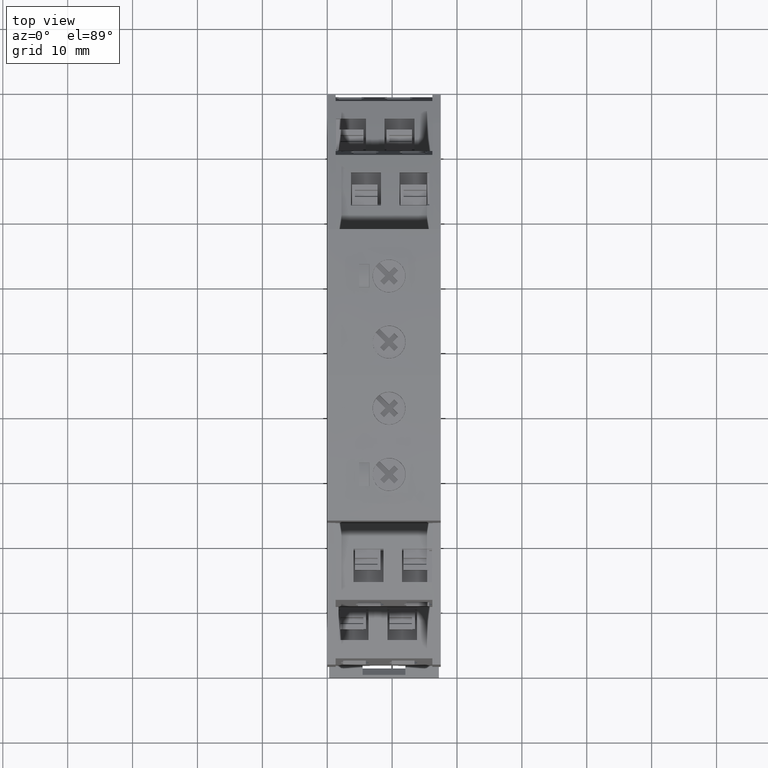
[diagram: clean part render]
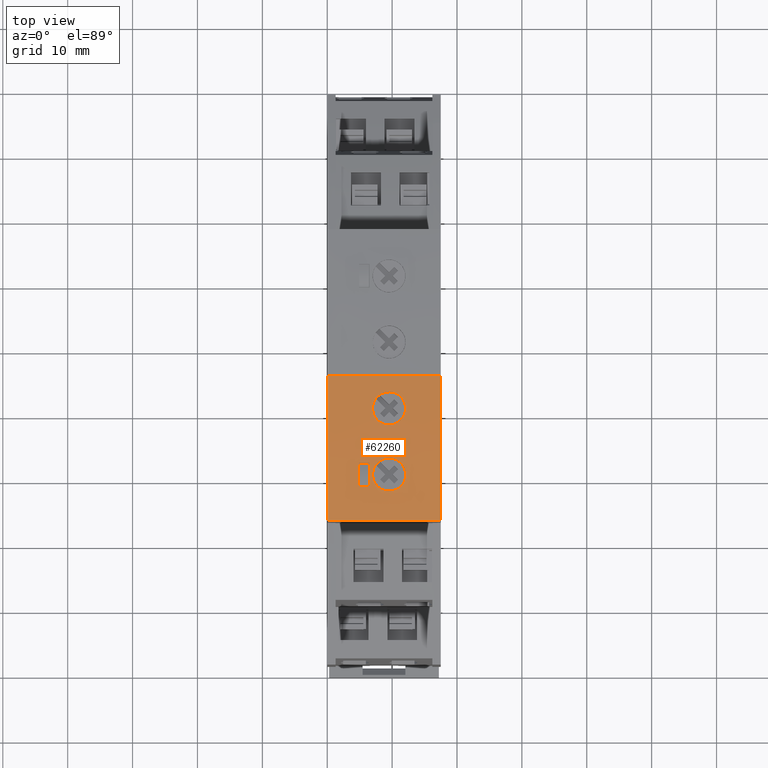
[diagram: same view with one face highlighted and labeled with its STEP entity id]
A machine part, top view. The second image highlights one B-rep face of the part: STEP entity #62260.
In plain terms, the highlighted face is a SurfaceOfExtrusion surface.
Its self-contained STEP definition (entity closure, byte-faithful):
#51370=CARTESIAN_POINT('',(-39.875644720519,59.9043663447041,
-3.5527136788005E-15));
#51380=VERTEX_POINT('',#51370);
#51410=CARTESIAN_POINT('',(-39.875644720519,59.9043663447041,
-3.5527136788005E-15));
#51420=DIRECTION('',(1.35525271560688E-20,-2.95822839457879E-31,1.));
#51430=VECTOR('',#51420,1.);
#51440=LINE('',#51410,#51430);
#51450=CARTESIAN_POINT('',(-39.875644720519,59.9043663447041,17.5));
#51460=VERTEX_POINT('',#51450);
#51470=EDGE_CURVE('',#51380,#51460,#51440,.T.);
#52220=CARTESIAN_POINT('',(-17.4845967167554,61.1580974394405,
3.5527136788005E-15));
#52230=VERTEX_POINT('',#52220);
#52260=CARTESIAN_POINT('',(154.280844406757,61.158091567358,0.));
#52270=CARTESIAN_POINT('',(144.771787865585,61.1580918924406,0.));
#52280=CARTESIAN_POINT('',(135.262731324412,61.1580922175233,0.));
#52290=CARTESIAN_POINT('',(116.250572891361,61.158092867485,0.));
#52300=CARTESIAN_POINT('',(106.747470999481,61.1580931923641,0.));
#52310=CARTESIAN_POINT('',(59.0013804994831,61.1580948246423,0.));
#52320=CARTESIAN_POINT('',(20.7583918913638,61.1580961320414,0.));
#52330=CARTESIAN_POINT('',(-24.5764013397725,61.1580976818854,0.));
#52340=CARTESIAN_POINT('',(-31.6631882343078,60.7809522745125,0.));
#52350=CARTESIAN_POINT('',(-76.7419121579807,55.9693133706651,0.));
#52360=CARTESIAN_POINT('',(-114.768891233554,51.9103676865408,0.));
#52370=CARTESIAN_POINT('',(-162.245295418095,46.8428038003955,0.));
#52380=CARTESIAN_POINT('',(-171.694720527062,45.8341855983744,0.));
#52390=CARTESIAN_POINT('',(-190.599491760387,43.8163171935673,0.));
#52400=CARTESIAN_POINT('',(-200.054837884744,42.8070669907813,0.));
#52410=CARTESIAN_POINT('',(-209.510184009101,41.7978167879953,0.));
#52420=B_SPLINE_CURVE_WITH_KNOTS('',3,(#52260,#52270,#52280,#52290,
#52300,#52310,#52320,#52330,#52340,#52350,#52360,#52370,#52380,#52390,
#52400,#52410),.UNSPECIFIED.,.F.,.F.,(4,2,2,2,2,2,2,4),(
-8.07342419662033,-6.73257274249117,-5.3925609405535,0.,1.,
6.39256310242424,7.73257544157093,9.07342743324572),.UNSPECIFIED.);
#52430=EDGE_CURVE('',#52230,#51380,#52420,.T.);
#53190=CARTESIAN_POINT('',(159.557858607754,61.1580913869546,
-3.5527136788005E-15));
#53200=CARTESIAN_POINT('',(157.798853874088,61.158091447089,
-3.5527136788005E-15));
#53210=CARTESIAN_POINT('',(156.039849140423,61.1580915072235,
-3.5527136788005E-15));
#53220=CARTESIAN_POINT('',(144.771787865585,61.1580918924406,
-3.5527136788005E-15));
#53230=CARTESIAN_POINT('',(135.262731324412,61.1580922175233,
-3.5527136788005E-15));
#53240=CARTESIAN_POINT('',(116.250572891361,61.158092867485,
-3.5527136788005E-15));
#53250=CARTESIAN_POINT('',(106.747470999481,61.1580931923641,
-3.5527136788005E-15));
#53260=CARTESIAN_POINT('',(59.0013804994831,61.1580948246423,
-3.5527136788005E-15));
#53270=CARTESIAN_POINT('',(20.7583918913639,61.1580961320414,
-3.5527136788005E-15));
#53280=CARTESIAN_POINT('',(-24.5764013397725,61.1580976818854,
-3.5527136788005E-15));
#53290=CARTESIAN_POINT('',(-31.6631882343078,60.7809522745125,
-3.5527136788005E-15));
#53300=CARTESIAN_POINT('',(-76.7419121579806,55.9693133706651,
-3.5527136788005E-15));
#53310=CARTESIAN_POINT('',(-114.768891233554,51.9103676865408,
-3.5527136788005E-15));
#53320=CARTESIAN_POINT('',(-162.245295418094,46.8428038003955,
-3.5527136788005E-15));
#53330=CARTESIAN_POINT('',(-171.694720527062,45.8341855983744,
-3.5527136788005E-15));
#53340=CARTESIAN_POINT('',(-190.599491760387,43.8163171935673,
-3.5527136788005E-15));
#53350=CARTESIAN_POINT('',(-200.054837884744,42.8070669907813,
-3.5527136788005E-15));
#53360=CARTESIAN_POINT('',(-211.259253279977,41.6111236206483,
-3.5527136788005E-15));
#53370=CARTESIAN_POINT('',(-213.008322550853,41.4244304533013,
-3.5527136788005E-15));
#53380=CARTESIAN_POINT('',(-214.757391821729,41.2377372859543,
-3.5527136788005E-15));
#53390=B_SPLINE_CURVE_WITH_KNOTS('',3,(#53190,#53200,#53210,#53220,
#53230,#53240,#53250,#53260,#53270,#53280,#53290,#53300,#53310,#53320,
#53330,#53340,#53350,#53360,#53370,#53380),.UNSPECIFIED.,.F.,.F.,(4,2,2,
2,2,2,2,2,2,4),(-8.32145764186731,-8.07342419662033,-6.73257274249117,
-5.3925609405535,0.,1.,6.39256310242424,7.73257544157093,
9.07342743324572,9.32146097792899),.UNSPECIFIED.);
#53400=DIRECTION('',(1.35525271560688E-20,-2.95822839457879E-31,1.));
#53410=VECTOR('',#53400,1.);
#53420=SURFACE_OF_LINEAR_EXTRUSION('',#53390,#53410);
#53430=CARTESIAN_POINT('',(-30.9844182525278,59.953195118063,
6.50042179353598));
#53440=DIRECTION('',(0.999999999536252,-5.02043146649139E-18,
-3.04548102665637E-5));
#53450=DIRECTION('',(5.02021973198065E-18,1.,-6.95249246343215E-18));
#53460=AXIS2_PLACEMENT_3D('',#53430,#53440,#53450);
#53470=PLANE('',#53460);
#53480=CARTESIAN_POINT('',(-30.9844182525278,60.7020337093781,
6.50042179353598));
#53490=CARTESIAN_POINT('',(-30.9844223885881,60.702033429602,
6.36461203995883));
#53500=CARTESIAN_POINT('',(-30.9844265246483,60.7020331498258,
6.22880228638168));
#53510=CARTESIAN_POINT('',(-30.9844306607086,60.7020328700495,
6.09299253280454));
#53520=CARTESIAN_POINT('',(-30.9844347967689,60.7020325902732,
5.95718277922739));
#53530=CARTESIAN_POINT('',(-30.9844389328292,60.7020323104967,
5.82137302565025));
#53540=CARTESIAN_POINT('',(-30.9844430688895,60.7020320307202,
5.6855632720731));
#53550=CARTESIAN_POINT('',(-30.9844472049497,60.7020317509436,
5.54975351849596));
#53560=CARTESIAN_POINT('',(-30.98445134101,60.7020314711669,
5.41394376491881));
#53570=CARTESIAN_POINT('',(-30.9844554770703,60.7020311913901,
5.27813401134167));
#53580=CARTESIAN_POINT('',(-30.9844575451004,60.7020310515016,
5.2102291345531));
#53590=CARTESIAN_POINT('',(-30.9844596131306,60.7020309116132,
5.14232425776452));
#53600=CARTESIAN_POINT('',(-30.9844616811607,60.7020307717247,
5.07441938097595));
#53610=CARTESIAN_POINT('',(-30.9844637491909,60.7020306318362,
5.00651450418738));
#53620=CARTESIAN_POINT('',(-30.984465817221,60.7020304919477,
4.93860962739881));
#53630=CARTESIAN_POINT('',(-30.9844678852511,60.7020303520592,
4.87070475061024));
#53640=B_SPLINE_CURVE_WITH_KNOTS('',3,(#53480,#53490,#53500,#53510,
#53520,#53530,#53540,#53550,#53560,#53570,#53580,#53590,#53600,#53610,
#53620,#53630),.UNSPECIFIED.,.F.,.F.,(4,3,3,3,3,4),(0.,0.407429260921246
,0.81485852184249,1.22228778276373,1.42600241322436,1.62971704368498),
.UNSPECIFIED.);
#53650=SURFACE_CURVE('',#53640,(#53470,#53420),.CURVE_3D.);
#53660=CARTESIAN_POINT('',(-30.9844182525278,60.7020337093781,
6.50042179353598));
#53670=VERTEX_POINT('',#53660);
#53680=CARTESIAN_POINT('',(-30.9844678852511,60.7020303520592,
4.87070475061024));
#53690=VERTEX_POINT('',#53680);
#53700=EDGE_CURVE('',#53670,#53690,#53650,.T.);
#53710=ORIENTED_EDGE('',*,*,#53700,.F.);
#53720=CARTESIAN_POINT('',(125.75367478324,61.1580925426059,
4.86593132021152));
#53730=CARTESIAN_POINT('',(116.250572891361,61.158092867485,
4.86622073537671));
#53740=CARTESIAN_POINT('',(106.747470999481,61.1580931923641,
4.86651015054191));
#53750=CARTESIAN_POINT('',(59.0013804994831,61.1580948246423,
4.86796424866973));
#53760=CARTESIAN_POINT('',(20.7583918913638,61.1580961320414,
4.86912893163236));
#53770=CARTESIAN_POINT('',(-24.5764013397726,61.1580976818854,
4.87050959415933));
#53780=CARTESIAN_POINT('',(-31.6631882343079,60.7809522745125,
4.8707254209097));
#53790=CARTESIAN_POINT('',(-76.7419121579808,55.9693133706651,
4.87209828489449));
#53800=CARTESIAN_POINT('',(-114.768891233554,51.9103676865408,
4.87325638932779));
#53810=CARTESIAN_POINT('',(-162.245295418095,46.8428038003955,
4.87470227421003));
#53820=CARTESIAN_POINT('',(-171.694720527062,45.8341855983744,
4.87499005465899));
#53830=CARTESIAN_POINT('',(-181.14414563603,44.8255673963532,
4.87527783510794));
#53840=B_SPLINE_CURVE_WITH_KNOTS('',3,(#53720,#53730,#53740,#53750,
#53760,#53770,#53780,#53790,#53800,#53810,#53820,#53830),.UNSPECIFIED.,
.F.,.F.,(4,2,2,2,2,4),(-6.73257274249117,-5.3925609405535,0.,1.,
6.39256310242424,7.73257544157093),.UNSPECIFIED.);
#53850=CARTESIAN_POINT('',(-34.5844678835817,60.4258539372222,
4.87081438792939));
#53860=VERTEX_POINT('',#53850);
#53870=EDGE_CURVE('',#53690,#53860,#53840,.T.);
#53880=ORIENTED_EDGE('',*,*,#53870,.F.);
#53890=CARTESIAN_POINT('',(-34.5844182508583,60.3746497202046,
6.50053143085294));
#53900=DIRECTION('',(-0.999999999536252,5.02043146649139E-18,
3.04548102665637E-5));
#53910=DIRECTION('',(-5.02021973198065E-18,-1.,6.95249246343215E-18));
#53920=AXIS2_PLACEMENT_3D('',#53890,#53900,#53910);
#53930=PLANE('',#53920);
#53940=CARTESIAN_POINT('',(-34.5844678835817,60.4258539372222,
4.87081438792938));
#53950=CARTESIAN_POINT('',(-34.5844637475214,60.4258542920984,
5.00662414150635));
#53960=CARTESIAN_POINT('',(-34.5844596114611,60.4258546469744,
5.14243389508331));
#53970=CARTESIAN_POINT('',(-34.5844554754008,60.4258550018504,
5.27824364866027));
#53980=CARTESIAN_POINT('',(-34.5844513393406,60.4258553567263,
5.41405340223724));
#53990=CARTESIAN_POINT('',(-34.5844472032803,60.4258557116021,
5.54986315581419));
#54000=CARTESIAN_POINT('',(-34.58444306722,60.4258560664778,
5.68567290939116));
#54010=CARTESIAN_POINT('',(-34.5844389311597,60.4258564213535,
5.82148266296812));
#54020=CARTESIAN_POINT('',(-34.5844347950994,60.425856776229,
5.95729241654509));
#54030=CARTESIAN_POINT('',(-34.5844306590392,60.4258571311044,
6.09310217012205));
#54040=CARTESIAN_POINT('',(-34.5844265229789,60.4258574859799,
6.22891192369901));
#54050=CARTESIAN_POINT('',(-34.5844223869186,60.4258578408551,
6.36472167727598));
#54060=CARTESIAN_POINT('',(-34.5844182508583,60.4258581957303,
6.50053143085294));
#54070=B_SPLINE_CURVE_WITH_KNOTS('',3,(#53940,#53950,#53960,#53970,
#53980,#53990,#54000,#54010,#54020,#54030,#54040,#54050,#54060),
.UNSPECIFIED.,.F.,.F.,(4,3,3,3,4),(0.,0.407429260921223,
0.814858521842447,1.22228778276367,1.62971704368489),.UNSPECIFIED.);
#54080=SURFACE_CURVE('',#54070,(#53930,#53420),.CURVE_3D.);
#54090=CARTESIAN_POINT('',(-34.5844182508583,60.4258581957303,
6.50053143085294));
#54100=VERTEX_POINT('',#54090);
#54110=EDGE_CURVE('',#53860,#54100,#54080,.T.);
#54120=ORIENTED_EDGE('',*,*,#54110,.F.);
#54130=CARTESIAN_POINT('',(125.75367478324,61.1580925426059,
6.49564836464882));
#54140=CARTESIAN_POINT('',(116.250572891361,61.158092867485,
6.49593777981401));
#54150=CARTESIAN_POINT('',(106.747470999482,61.1580931923641,
6.49622719497921));
#54160=CARTESIAN_POINT('',(59.0013804994831,61.1580948246423,
6.49768129310703));
#54170=CARTESIAN_POINT('',(20.7583918913638,61.1580961320414,
6.49884597606966));
#54180=CARTESIAN_POINT('',(-24.5764013397726,61.1580976818854,
6.50022663859662));
#54190=CARTESIAN_POINT('',(-31.6631882343079,60.7809522745125,
6.500442465347));
#54200=CARTESIAN_POINT('',(-76.7419121579808,55.9693133706651,
6.50181532933179));
#54210=CARTESIAN_POINT('',(-114.768891233554,51.9103676865408,
6.50297343376508));
#54220=CARTESIAN_POINT('',(-162.245295418095,46.8428038003955,
6.50441931864733));
#54230=CARTESIAN_POINT('',(-171.694720527062,45.8341855983744,
6.50470709909629));
#54240=CARTESIAN_POINT('',(-181.14414563603,44.8255673963532,
6.50499487954524));
#54250=B_SPLINE_CURVE_WITH_KNOTS('',3,(#54130,#54140,#54150,#54160,
#54170,#54180,#54190,#54200,#54210,#54220,#54230,#54240),.UNSPECIFIED.,
.F.,.F.,(4,2,2,2,2,4),(-6.73257274249117,-5.3925609405535,0.,1.,
6.39256310242424,7.73257544157093),.UNSPECIFIED.);
#54260=EDGE_CURVE('',#53670,#54100,#54250,.T.);
#54270=ORIENTED_EDGE('',*,*,#54260,.T.);
#54280=EDGE_LOOP('',(#54270,#54120,#53880,#53710));
#54290=FACE_BOUND('',#54280,.T.);
#54300=CARTESIAN_POINT('',(-32.7843253645217,59.45,9.55047661078003));
#54310=DIRECTION('',(-5.02021470133193E-18,-1.,7.11767649097219E-18));
#54320=DIRECTION('',(-0.999999999536252,5.02043146649091E-18,
3.04548102664226E-5));
#54330=AXIS2_PLACEMENT_3D('',#54300,#54310,#54320);
#54340=CYLINDRICAL_SURFACE('',#54330,2.55000000000001);
#54350=CARTESIAN_POINT('',(-30.2343253657043,60.7513566432208,
9.55039895101385));
#54360=CARTESIAN_POINT('',(-30.23432679397,60.751356551999,
9.50350107969356));
#54370=CARTESIAN_POINT('',(-30.2356229636318,60.7512737795896,
9.4566425172645));
#54380=CARTESIAN_POINT('',(-30.2382015500524,60.7511090379041,
9.4099293895618));
#54390=CARTESIAN_POINT('',(-30.2407801463115,60.75094429559,
9.36321608362493));
#54400=CARTESIAN_POINT('',(-30.2446410352253,60.7506975913234,
9.31664915258702));
#54410=CARTESIAN_POINT('',(-30.2497608469037,60.7503701972186,
9.27032896036746));
#54420=CARTESIAN_POINT('',(-30.2523207548254,60.7502065000331,
9.24716884541675));
#54430=CARTESIAN_POINT('',(-30.2551952244311,60.7500226389672,
9.22407037302433));
#54440=CARTESIAN_POINT('',(-30.2583804345481,60.749818817788,
9.20104534323146));
#54450=CARTESIAN_POINT('',(-30.2615643513714,60.7496150793664,
9.17802966231135));
#54460=CARTESIAN_POINT('',(-30.2650656146743,60.749390958309,
9.15503678824761));
#54470=CARTESIAN_POINT('',(-30.2688868198056,60.7491462379517,
9.13206422119689));
#54480=CARTESIAN_POINT('',(-30.2765288221357,60.7486568233624,
9.0861215395304));
#54490=CARTESIAN_POINT('',(-30.285448240637,60.7480851710369,
9.04028086604833));
#54500=CARTESIAN_POINT('',(-30.2956408657822,60.7474310359555,
8.99464438273488));
#54510=CARTESIAN_POINT('',(-30.3058334495371,60.7467769035304,
8.94900808474243));
#54520=CARTESIAN_POINT('',(-30.3172991105548,60.746040295774,
8.90357690834522));
#54530=CARTESIAN_POINT('',(-30.3300215180631,60.7452216058566,
8.85845592520882));
#54540=CARTESIAN_POINT('',(-30.3427438986354,60.7444029176725,
8.81333503760261));
#54550=CARTESIAN_POINT('',(-30.3567227991718,60.743502160553,
8.76852529411278));
#54560=CARTESIAN_POINT('',(-30.371929592786,60.7425203939723,
8.7241312589376));
#54570=CARTESIAN_POINT('',(-30.3871363822292,60.7415386276608,
8.67973723593897));
#54580=CARTESIAN_POINT('',(-30.4035707483341,60.7404758705663,
8.63575986101497));
#54590=CARTESIAN_POINT('',(-30.4211923389285,60.7393338351015,
8.59230005953763));
#54600=CARTESIAN_POINT('',(-30.4388139569155,60.7381917978614,
8.54884019050246));
#54610=CARTESIAN_POINT('',(-30.4576224027377,60.7369705059345,
8.50589879509981));
#54620=CARTESIAN_POINT('',(-30.4775668939001,60.7356722693272,
8.46357028629044));
#54630=CARTESIAN_POINT('',(-30.4975114540046,60.7343740282322,
8.42124163116407));
#54640=CARTESIAN_POINT('',(-30.5185915950395,60.732998870562,
8.37952669524015));
#54650=CARTESIAN_POINT('',(-30.5407481347385,60.7315496031268,
8.33851076390217));
#54660=CARTESIAN_POINT('',(-30.5518264106599,60.7308249690121,
8.318002786993));
#54670=CARTESIAN_POINT('',(-30.5631736377712,60.7300818165447,
8.29766946729113));
#54680=CARTESIAN_POINT('',(-30.5747818223497,60.7293205331374,
8.27752047043354));
#54690=CARTESIAN_POINT('',(-30.586392094398,60.7285591128306,
8.2573678502338));
#54700=CARTESIAN_POINT('',(-30.5982485615493,60.7277805331312,
8.23742320359936));
#54710=CARTESIAN_POINT('',(-30.6104066703706,60.7269810054571,
8.21759345340268));
#54720=CARTESIAN_POINT('',(-30.6347169030799,60.7253823436833,
8.17794371437388));
#54730=CARTESIAN_POINT('',(-30.6601710530895,60.7237040008182,
8.13886419298851));
#54740=CARTESIAN_POINT('',(-30.6867281214381,60.7219473861726,
8.1004470228722));
#54750=CARTESIAN_POINT('',(-30.7132850729225,60.720190779257,
8.06203002181036));
#54760=CARTESIAN_POINT('',(-30.740944488272,60.7183559279696,
8.0242761754672));
#54770=CARTESIAN_POINT('',(-30.7696530229785,60.7164450246376,
7.98727625374941));
#54780=CARTESIAN_POINT('',(-30.7983614874905,60.714534125978,
7.95027642249912));
#54790=CARTESIAN_POINT('',(-30.828118517609,60.7125472092784,
7.91403130472598));
#54800=CARTESIAN_POINT('',(-30.8588594514415,60.7104872237718,
7.87862703095341));
#54810=CARTESIAN_POINT('',(-30.8896003666716,60.7084272395117,
7.84322277860529));
#54820=CARTESIAN_POINT('',(-30.9213245507496,60.7062942261135,
7.80866011874865));
#54830=CARTESIAN_POINT('',(-30.9539576386816,60.7040918254014,
7.77501780016145));
#54840=CARTESIAN_POINT('',(-30.9865907658975,60.7018894220381,
7.74137544107552));
#54850=CARTESIAN_POINT('',(-31.0201321003732,60.6996176756826,
7.70865410874344));
#54860=CARTESIAN_POINT('',(-31.0544997507919,60.6972808162576,
7.6769229429914));
#54870=CARTESIAN_POINT('',(-31.0888675066661,60.6949439496621,
7.6451916798737));
#54880=CARTESIAN_POINT('',(-31.1240608416578,60.6925420178066,
7.61445118494621));
#54890=CARTESIAN_POINT('',(-31.1599930825586,60.6900796898233,
7.58475927663139));
#54900=CARTESIAN_POINT('',(-31.1883326031907,60.6881376680364,
7.56134146501705));
#54910=CARTESIAN_POINT('',(-31.2171313911601,60.6861581042374,
7.53857588413832));
#54920=CARTESIAN_POINT('',(-31.2463461036527,60.6841434066893,
7.51648551120837));
#54930=CARTESIAN_POINT('',(-31.2755409934972,60.6821300761455,
7.49441012694844));
#54940=CARTESIAN_POINT('',(-31.3052302902679,60.6800762195057,
7.47294784248723));
#54950=CARTESIAN_POINT('',(-31.3354433349697,60.6779791210153,
7.45208654588708));
#54960=CARTESIAN_POINT('',(-31.365651083338,60.6758823901453,
7.43122890626317));
#54970=CARTESIAN_POINT('',(-31.3963603547462,60.6737439521133,
7.41098866603183));
#54980=CARTESIAN_POINT('',(-31.4275336925097,60.6715657431323,
7.39139894687836));
#54990=CARTESIAN_POINT('',(-31.4587069677101,60.6693875385229,
7.37180926704038));
#55000=CARTESIAN_POINT('',(-31.4903440838764,60.6671695777396,
7.3528702771164));
#55010=CARTESIAN_POINT('',(-31.5224035513387,60.6649141338849,
7.33461259477782));
#55020=CARTESIAN_POINT('',(-31.5544629787363,60.6626586928489,
7.31635493525584));
#55030=CARTESIAN_POINT('',(-31.5869445121271,60.6603657851075,
7.29877873948186));
#55040=CARTESIAN_POINT('',(-31.6198033045762,60.6580379876868,
7.28191134350165));
#55050=CARTESIAN_POINT('',(-31.6526620796353,60.655710191498,
7.26504395644823));
#55060=CARTESIAN_POINT('',(-31.6858978535206,60.6533475232907,
7.24888550954036));
#55070=CARTESIAN_POINT('',(-31.7194631768185,60.6509528234814,
7.23345945046312));
#55080=CARTESIAN_POINT('',(-31.7530285059801,60.6485581232537,
7.21803338869107));
#55090=CARTESIAN_POINT('',(-31.7869231143287,60.6461314100775,
7.20333983667089));
#55100=CARTESIAN_POINT('',(-31.8210977804131,60.6436757393035,
7.18939791213065));
#55110=CARTESIAN_POINT('',(-31.8552724766741,60.641220066361,
7.17545597527949));
#55120=CARTESIAN_POINT('',(-31.8897269554863,60.6387354551472,
7.16226576717496));
#55130=CARTESIAN_POINT('',(-31.924411129511,60.6362251189999,
7.14984179714668));
#55140=CARTESIAN_POINT('',(-31.9590953596035,60.6337147787947,
7.13741780703474));
#55150=CARTESIAN_POINT('',(-31.9940090100696,60.631178733305,
7.12576013370932));
#55160=CARTESIAN_POINT('',(-32.0291021114681,60.6286202877617,
7.11487856552546));
#55170=CARTESIAN_POINT('',(-32.0641952969162,60.6260618360908,
7.10399697127975));
#55180=CARTESIAN_POINT('',(-32.0994676645684,60.6234810039407,
7.09389153672789));
#55190=CARTESIAN_POINT('',(-32.1348704262716,60.620881112584,
7.08456739039445));
#55200=CARTESIAN_POINT('',(-32.2056111977895,60.6156860850892,
7.06593615165374));
#55210=CARTESIAN_POINT('',(-32.2771591552039,60.6103938718173,
7.05034845285475));
#55220=CARTESIAN_POINT('',(-32.3492869025012,60.6050190374068,
7.0378601385418));
#55230=CARTESIAN_POINT('',(-32.4214174566337,60.5996439938359,
7.02537133824887));
#55240=CARTESIAN_POINT('',(-32.4939922900835,60.5941964394762,
7.01600394368824));
#55250=CARTESIAN_POINT('',(-32.5668353585609,60.5886884074024,
7.00976842263499));
#55260=CARTESIAN_POINT('',(-32.6396819599926,60.5831801081842,
7.00353259915336));
#55270=CARTESIAN_POINT('',(-32.7127783807041,60.5776126918923,
7.00043264627143));
#55280=CARTESIAN_POINT('',(-32.7858755068135,60.5720047076499,
7.00047708194498));
#55290=CARTESIAN_POINT('',(-32.8589737635139,60.5663966366688,
7.00052151830581));
#55300=CARTESIAN_POINT('',(-32.9320563007207,60.5607492639408,
7.00370985735554));
#55310=CARTESIAN_POINT('',(-33.0048940182543,60.5550807139842,
7.01003384051523));
#55320=CARTESIAN_POINT('',(-33.0777173692863,60.5494132820916,
7.01635657633334));
#55330=CARTESIAN_POINT('',(-33.1502754579755,60.5437262701244,
7.02581284256739));
#55340=CARTESIAN_POINT('',(-33.2223093611373,60.5380412594089,
7.03837191178584));
#55350=CARTESIAN_POINT('',(-33.2942993718181,60.5323597127461,
7.05092332837567));
#55360=CARTESIAN_POINT('',(-33.3658314675884,60.5266749899229,
7.06658494622498));
#55370=CARTESIAN_POINT('',(-33.4366545909608,60.521008923999,
7.08532619339501));
#55380=CARTESIAN_POINT('',(-33.4720600811458,60.5181763767757,
7.09469521033661));
#55390=CARTESIAN_POINT('',(-33.5072751842196,60.5153495621401,
7.10483039505266));
#55400=CARTESIAN_POINT('',(-33.5422510425602,60.5125327441748,
7.11571816966723));
#55410=CARTESIAN_POINT('',(-33.5772269089059,60.5097159255647,
7.12660594677376));
#55420=CARTESIAN_POINT('',(-33.6119632668235,60.5069091253574,
7.13824622890898));
#55430=CARTESIAN_POINT('',(-33.6464127806101,60.5041165822377,
7.15062134701472));
#55440=CARTESIAN_POINT('',(-33.6808629595089,60.5013239852028,
7.16299670404523));
#55450=CARTESIAN_POINT('',(-33.7150233383082,60.4985458865215,
7.17610572865782));
#55460=CARTESIAN_POINT('',(-33.7488565934856,60.4957857988929,
7.18993016803559));
#55470=CARTESIAN_POINT('',(-33.7827011182326,60.4930247919026,
7.20375921221653));
#55480=CARTESIAN_POINT('',(-33.8163181518833,60.4902736603939,
7.21834503856603));
#55490=CARTESIAN_POINT('',(-33.8496605757357,60.4875366425655,
7.23367690261626));
#55500=CARTESIAN_POINT('',(-33.8830029132996,60.4847996318204,
7.2490087269884));
#55510=CARTESIAN_POINT('',(-33.9160703863746,60.4820767558372,
7.26508650444111));
#55520=CARTESIAN_POINT('',(-33.9488150906717,60.4793724068626,
7.28189474589363));
#55530=CARTESIAN_POINT('',(-33.9815597360034,60.4766680627579,
7.2987029570785));
#55540=CARTESIAN_POINT('',(-34.0139813538578,60.4739822674163,
7.31624152256889));
#55550=CARTESIAN_POINT('',(-34.0460323327254,60.4713194746553,
7.33449025559033));
#55560=CARTESIAN_POINT('',(-34.0780832775197,60.468656684725,
7.35273896921162));
#55570=CARTESIAN_POINT('',(-34.1097633261602,60.4660169193142,
7.37169771790735));
#55580=CARTESIAN_POINT('',(-34.1410261348266,60.4634046061602,
7.39134182576665));
#55590=CARTESIAN_POINT('',(-34.1722889323748,60.4607922939353,
7.41098592663979));
#55600=CARTESIAN_POINT('',(-34.2031342393094,60.458207455636,
7.43131523398367));
#55610=CARTESIAN_POINT('',(-34.2335178541412,60.4556544104359,
7.45230094415176));
#55620=CARTESIAN_POINT('',(-34.2639014793681,60.4531013643624,
7.47328666149975));
#55630=CARTESIAN_POINT('',(-34.2938231730242,60.4505801323523,
7.49492861152053));
#55640=CARTESIAN_POINT('',(-34.3232416532109,60.4480948480904,
7.51719437350764));
#55650=CARTESIAN_POINT('',(-34.3526601643182,60.4456095612163,
7.53946015889749));
#55660=CARTESIAN_POINT('',(-34.3815752381223,60.4431602419235,
7.56234957175969));
#55670=CARTESIAN_POINT('',(-34.4099491929632,60.4407507676294,
7.58582723534341));
#55680=CARTESIAN_POINT('',(-34.4459253291231,60.4376957273375,
7.61559522597217));
#55690=CARTESIAN_POINT('',(-34.4810306942398,60.4347048149579,
7.6463085825633));
#55700=CARTESIAN_POINT('',(-34.515198419378,60.43178516828,
7.67789057324461));
#55710=CARTESIAN_POINT('',(-34.5322822938235,60.4303253439262,
7.69368157956295));
#55720=CARTESIAN_POINT('',(-34.5491318863751,60.4288833262367,
7.70968963216915));
#55730=CARTESIAN_POINT('',(-34.5657399317576,60.4274599191464,
7.72590484194229));
#55740=CARTESIAN_POINT('',(-34.5823442427948,60.4260368321114,
7.74211640569969));
#55750=CARTESIAN_POINT('',(-34.598714788231,60.4246316939751,
7.75854153889995));
#55760=CARTESIAN_POINT('',(-34.6148966914949,60.4232407890913,
7.77522772207071));
#55770=CARTESIAN_POINT('',(-34.6472518066198,60.4204597263875,
7.80859112615745));
#55780=CARTESIAN_POINT('',(-34.6787753277506,60.417742198242,
7.84292333773202));
#55790=CARTESIAN_POINT('',(-34.7093872681714,60.4150963469984,
7.87816184760989));
#55800=CARTESIAN_POINT('',(-34.7399990800824,60.4124505068621,
7.91340020955551));
#55810=CARTESIAN_POINT('',(-34.7696986475775,60.409876403205,
7.94954422616559));
#55820=CARTESIAN_POINT('',(-34.7984105881496,60.4073818502958,
7.98651986202902));
#55830=CARTESIAN_POINT('',(-34.8271224636949,60.4048873030363,
8.02349541415006));
#55840=CARTESIAN_POINT('',(-34.8548460876067,60.4024723633498,
8.06130185069624));
#55850=CARTESIAN_POINT('',(-34.88151352713,60.4001442355849,
8.09985542983179));
#55860=CARTESIAN_POINT('',(-34.9081809550791,60.3978161088305,
8.13840899223425));
#55870=CARTESIAN_POINT('',(-34.9337916330816,60.3955748460344,
8.17770889427621));
#55880=CARTESIAN_POINT('',(-34.9582872799743,60.3934268108012,
8.21766394946492));
#55890=CARTESIAN_POINT('',(-34.9827829606758,60.3912787726033,
8.25761905979943));
#55900=CARTESIAN_POINT('',(-35.0061631212132,60.3892240074277,
8.29822847619166));
#55910=CARTESIAN_POINT('',(-35.0283807081614,60.3872678606782,
8.33939626056282));
#55920=CARTESIAN_POINT('',(-35.0505983676378,60.385311707543,
8.38056417932412));
#55930=CARTESIAN_POINT('',(-35.0716530564547,60.3834542101078,
8.4222896010272));
#55940=CARTESIAN_POINT('',(-35.0915098905813,60.3816995757011,
8.46447497049053));
#55950=CARTESIAN_POINT('',(-35.1113704443707,60.3799446126091,
8.50666824228863));
#55960=CARTESIAN_POINT('',(-35.1300185076543,60.3782938104219,
8.54928673520746));
#55970=CARTESIAN_POINT('',(-35.1474713103258,60.3767466663001,
8.59233192503071));
#55980=CARTESIAN_POINT('',(-35.1649393204126,60.3751981740818,
8.63541462207198));
#55990=CARTESIAN_POINT('',(-35.1812739475736,60.3737478438511,
8.67908774508778));
#56000=CARTESIAN_POINT('',(-35.1964238996923,60.3724010897479,
8.72326402829104));
#56010=CARTESIAN_POINT('',(-35.2115737813031,60.3710543419124,
8.76744010589792));
#56020=CARTESIAN_POINT('',(-35.2255386025414,60.3698112062509,
8.81211849159794));
#56030=CARTESIAN_POINT('',(-35.2382754197999,60.3686762710267,
8.85720240370169));
#56040=CARTESIAN_POINT('',(-35.251012203296,60.3675413388109,
8.90228619629776));
#56050=CARTESIAN_POINT('',(-35.2625206682063,60.36651463669,
8.94777458664993));
#56060=CARTESIAN_POINT('',(-35.2727683396834,60.3655997127035,
8.99356408679769));
#56070=CARTESIAN_POINT('',(-35.2830160032748,60.364684789421,
9.03935355170946));
#56080=CARTESIAN_POINT('',(-35.2920026402574,60.3638816663868,
9.08544315180682));
#56090=CARTESIAN_POINT('',(-35.2997075715287,60.3631927110729,
9.13172566729111));
#56100=CARTESIAN_POINT('',(-35.307412511096,60.3625037550171,
9.1780082326083));
#56110=CARTESIAN_POINT('',(-35.3138356006064,60.3619289804491,
9.22448272269621));
#56120=CARTESIAN_POINT('',(-35.318968518195,60.3614695078462,
9.27104131677232));
#56130=CARTESIAN_POINT('',(-35.3241014510639,60.3610100338756,
9.31760004944972));
#56140=CARTESIAN_POINT('',(-35.3279441611034,60.3606658668021,
9.36424191033385));
#56150=CARTESIAN_POINT('',(-35.3305004755422,60.3604368894211,
9.41086176909));
#56160=CARTESIAN_POINT('',(-35.3330568028079,60.3602079108912,
9.45748186177374));
#56170=CARTESIAN_POINT('',(-35.334326778734,60.3600941179883,
9.50407902444705));
#56180=CARTESIAN_POINT('',(-35.3343253633392,60.3600942447972,
9.55055427054621));
#56190=B_SPLINE_CURVE_WITH_KNOTS('',3,(#54350,#54360,#54370,#54380,
#54390,#54400,#54410,#54420,#54430,#54440,#54450,#54460,#54470,#54480,
#54490,#54500,#54510,#54520,#54530,#54540,#54550,#54560,#54570,#54580,
#54590,#54600,#54610,#54620,#54630,#54640,#54650,#54660,#54670,#54680,
#54690,#54700,#54710,#54720,#54730,#54740,#54750,#54760,#54770,#54780,
#54790,#54800,#54810,#54820,#54830,#54840,#54850,#54860,#54870,#54880,
#54890,#54900,#54910,#54920,#54930,#54940,#54950,#54960,#54970,#54980,
#54990,#55000,#55010,#55020,#55030,#55040,#55050,#55060,#55070,#55080,
#55090,#55100,#55110,#55120,#55130,#55140,#55150,#55160,#55170,#55180,
#55190,#55200,#55210,#55220,#55230,#55240,#55250,#55260,#55270,#55280,
#55290,#55300,#55310,#55320,#55330,#55340,#55350,#55360,#55370,#55380,
#55390,#55400,#55410,#55420,#55430,#55440,#55450,#55460,#55470,#55480,
#55490,#55500,#55510,#55520,#55530,#55540,#55550,#55560,#55570,#55580,
#55590,#55600,#55610,#55620,#55630,#55640,#55650,#55660,#55670,#55680,
#55690,#55700,#55710,#55720,#55730,#55740,#55750,#55760,#55770,#55780,
#55790,#55800,#55810,#55820,#55830,#55840,#55850,#55860,#55870,#55880,
#55890,#55900,#55910,#55920,#55930,#55940,#55950,#55960,#55970,#55980,
#55990,#56000,#56010,#56020,#56030,#56040,#56050,#56060,#56070,#56080,
#56090,#56100,#56110,#56120,#56130,#56140,#56150,#56160,#56170,#56180),
.UNSPECIFIED.,.F.,.F.,(4,3,3,3,3,3,3,3,3,3,3,3,3,3,3,3,3,3,3,3,3,3,3,3,3
,3,3,3,3,3,3,3,3,3,3,3,3,3,3,3,3,3,3,3,3,3,3,3,3,3,3,3,3,3,3,3,3,3,3,3,3
,4),(0.,0.140541109412035,0.28063893011121,0.350461037562005,
0.420243103622836,0.560271236124351,0.700767560193384,0.841521760573334,
0.982310560989134,1.12290882408699,1.26310051133093,1.3329817150819,
1.40273954198361,1.54266274846334,1.68308860988455,1.82381159735737,
1.96461099286367,2.10526202576249,2.24554670364614,2.35579768086777,
2.46591315919533,2.57639687224851,2.68717206586577,2.79813758711665,
2.90918627865265,3.02020835284092,3.13109463987607,3.24173987253031,
3.3520461691364,3.57213108479625,3.79216035406128,4.01209876672115,
4.23204533990503,4.4520282177361,4.67218366952694,4.7824016238812,
4.89258600782615,5.00263680952367,5.11284179217248,5.22340909572113,
5.3342434071254,5.44524113783492,5.55629396571307,5.66729214016175,
5.77812770947377,5.91826461784769,5.98811320966609,6.05787879469928,
6.19786143083337,6.3383288714167,6.4790713861308,6.6198663325507,
6.76048921517911,6.90072456030085,7.04039741942072,7.18026658370686,
7.32065860049346,7.46136677527601,7.60216879946411,7.74283812403579,
7.8831549711574,8.02291788012193),.UNSPECIFIED.);
#56200=SURFACE_CURVE('',#56190,(#54340,#53420),.CURVE_3D.);
#56210=CARTESIAN_POINT('',(-30.2343253657043,60.7513566432208,
9.55039895101385));
#56220=VERTEX_POINT('',#56210);
#56230=CARTESIAN_POINT('',(-35.3343253633392,60.3600942447972,
9.55055427054621));
#56240=VERTEX_POINT('',#56230);
#56250=EDGE_CURVE('',#56220,#56240,#56200,.T.);
#56260=ORIENTED_EDGE('',*,*,#56250,.F.);
#56270=CARTESIAN_POINT('',(-35.3343253633392,60.3600942447972,
9.55055427054621));
#56280=CARTESIAN_POINT('',(-35.3343239480138,60.3600943715999,
9.59702723788251));
#56290=CARTESIAN_POINT('',(-35.3330511491188,60.3602084172461,
9.64354405821877));
#56300=CARTESIAN_POINT('',(-35.3305054650452,60.3604364424951,
9.69000042845347));
#56310=CARTESIAN_POINT('',(-35.3279597822326,60.360664467631,
9.73645677567621));
#56320=CARTESIAN_POINT('',(-35.3241412568922,60.3610064682893,
9.78285172410403));
#56330=CARTESIAN_POINT('',(-35.3190599903988,60.3614613197011,
9.8290809475085));
#56340=CARTESIAN_POINT('',(-35.3165193621737,60.3616887449575,
9.85219551352495));
#56350=CARTESIAN_POINT('',(-35.313663239812,60.361944363516,
9.87526857067986));
#56360=CARTESIAN_POINT('',(-35.310493955435,60.3622279258013,
9.89828726370048));
#56370=CARTESIAN_POINT('',(-35.3073251737158,60.3625114431127,
9.92130230588872));
#56380=CARTESIAN_POINT('',(-35.3038378903299,60.3628233819933,
9.94430269528862));
#56390=CARTESIAN_POINT('',(-35.3000313557675,60.3631637588464,
9.96727796107785));
#56400=CARTESIAN_POINT('',(-35.2924183433802,60.3638445074791,
10.0132281502038));
#56410=CARTESIAN_POINT('',(-35.2835280078097,60.3646390454901,
10.0590752660771));
#56420=CARTESIAN_POINT('',(-35.2733648867014,60.3655464513942,
10.1047168628619));
#56430=CARTESIAN_POINT('',(-35.2632018063749,60.3664538536571,
10.1503582764993));
#56440=CARTESIAN_POINT('',(-35.2517660723136,60.3674741111482,
10.1957932302065));
#56450=CARTESIAN_POINT('',(-35.2390743936897,60.3686050755185,
10.2409164733308));
#56460=CARTESIAN_POINT('',(-35.2263827411855,60.3697360375613,
10.2860396235903));
#56470=CARTESIAN_POINT('',(-35.2124353735192,60.3709776846685,
10.3308501044259));
#56480=CARTESIAN_POINT('',(-35.1972613249148,60.3723266451081,
10.375243275384));
#56490=CARTESIAN_POINT('',(-35.1820872794015,60.373675605273,
10.4196364372988));
#56500=CARTESIAN_POINT('',(-35.1656868723717,60.375131848602,
10.4636113434705));
#56510=CARTESIAN_POINT('',(-35.1481008657651,60.3766908568975,
10.5070671081829));
#56520=CARTESIAN_POINT('',(-35.1305148303634,60.3782498677456,
10.5505229440494));
#56530=CARTESIAN_POINT('',(-35.1117435948201,60.3799116061075,
10.5934587343593));
#56540=CARTESIAN_POINT('',(-35.0918383231367,60.3816705537293,
10.6357802299687));
#56550=CARTESIAN_POINT('',(-35.0520144445453,60.3851896273523,
10.7204515738094));
#56560=CARTESIAN_POINT('',(-35.0077126232774,60.3890924397092,
10.8025413615382));
#56570=CARTESIAN_POINT('',(-34.9592513370189,60.3933422698184,
10.8817155127647));
#56580=CARTESIAN_POINT('',(-34.9349785583362,60.3954708799656,
10.9213714277947));
#56590=CARTESIAN_POINT('',(-34.9095637033527,60.397695180082,
10.9604557797316));
#56600=CARTESIAN_POINT('',(-34.8830480528079,60.4000102620703,
10.9988767894851));
#56610=CARTESIAN_POINT('',(-34.8565325161046,60.4023253341191,
11.037297634283));
#56620=CARTESIAN_POINT('',(-34.8289166375677,60.4047311457696,
11.0750543373815));
#56630=CARTESIAN_POINT('',(-34.8002539230668,60.4072216889477,
11.1120565949123));
#56640=CARTESIAN_POINT('',(-34.7715912760635,60.4097122262608,
11.1490587653067));
#56650=CARTESIAN_POINT('',(-34.7418823440324,60.4122874443803,
11.1853057068396));
#56660=CARTESIAN_POINT('',(-34.7111918196047,60.4149403677772,
11.2207118230409));
#56670=CARTESIAN_POINT('',(-34.680501311441,60.4175932897682,
11.2561179204791));
#56680=CARTESIAN_POINT('',(-34.6488298408892,60.4203238597154,
11.2906824508132));
#56690=CARTESIAN_POINT('',(-34.6162516711402,60.4231243180642,
11.3243272265645));
#56700=CARTESIAN_POINT('',(-34.5836734601675,60.4259247799567,
11.3579720448894));
#56710=CARTESIAN_POINT('',(-34.5501892398453,60.4287950682767,
11.390696430509));
#56720=CARTESIAN_POINT('',(-34.5158806734335,60.4317268682038,
11.4224317951206));
#56730=CARTESIAN_POINT('',(-34.4815720000777,60.4346586772697,
11.4541672586551));
#56740=CARTESIAN_POINT('',(-34.4464397091193,60.4376519334202,
11.4849131070329));
#56750=CARTESIAN_POINT('',(-34.4105701337012,60.4406980372858,
11.5146120314465));
#56760=CARTESIAN_POINT('',(-34.3822785303872,60.4431006071855,
11.5380366239755));
#56770=CARTESIAN_POINT('',(-34.3535286133225,60.4455360258112,
11.5608099527262));
#56780=CARTESIAN_POINT('',(-34.3243635235821,60.4480000688801,
11.5829092587755));
#56790=CARTESIAN_POINT('',(-34.2952176837267,60.4504624856023,
11.6049939785814));
#56800=CARTESIAN_POINT('',(-34.2655605154784,60.4529616662896,
11.626479649909));
#56810=CARTESIAN_POINT('',(-34.2353897001528,60.4554971159062,
11.6473581748793));
#56820=CARTESIAN_POINT('',(-34.2052219083687,60.458032311435,
11.6682346075268));
#56830=CARTESIAN_POINT('',(-34.174553094964,60.4606027099652,
11.6884945388831));
#56840=CARTESIAN_POINT('',(-34.1434205759763,60.4632045127229,
11.7081049861499));
#56850=CARTESIAN_POINT('',(-34.1122881177922,60.4658063103991,
11.7277153951165));
#56860=CARTESIAN_POINT('',(-34.0806921766929,60.4684394927298,
11.7466761533118));
#56870=CARTESIAN_POINT('',(-34.0486740415525,60.4710999840723,
11.7649567806825));
#56880=CARTESIAN_POINT('',(-34.0166559450711,60.4737604722025,
11.783237385981));
#56890=CARTESIAN_POINT('',(-33.9842158966098,60.476448248349,
11.8008377063388));
#56900=CARTESIAN_POINT('',(-33.9513984919701,60.4791590297482,
11.8177305258037));
#56910=CARTESIAN_POINT('',(-33.9185811036463,60.4818698097998,
11.83462333687));
#56920=CARTESIAN_POINT('',(-33.8853866157661,60.4846035731408,
11.8508085085361));
#56930=CARTESIAN_POINT('',(-33.8518621871566,60.4873559041225,
11.8662626830075));
#56940=CARTESIAN_POINT('',(-33.818337751919,60.4901082356483,
11.8817168605342));
#56950=CARTESIAN_POINT('',(-33.7844836423476,60.4928791123261,
11.8964399205194));
#56960=CARTESIAN_POINT('',(-33.7503487613274,60.4956640635126,
11.910412795686));
#56970=CARTESIAN_POINT('',(-33.7162138496573,60.4984490171998,
11.9243856833988));
#56980=CARTESIAN_POINT('',(-33.6817984378146,60.5012480228222,
11.9376082862877));
#56990=CARTESIAN_POINT('',(-33.6471522782623,60.5040566357709,
11.9500661000319));
#57000=CARTESIAN_POINT('',(-33.6125060624472,60.5068652532805,
11.9625239340066));
#57010=CARTESIAN_POINT('',(-33.5776293699046,60.5096834559106,
11.9742169010546));
#57020=CARTESIAN_POINT('',(-33.5425718304473,60.5125069089212,
11.9851351693693));
#57030=CARTESIAN_POINT('',(-33.5075142070178,60.5153303686948,
11.9960534638363));
#57040=CARTESIAN_POINT('',(-33.4722760017117,60.5181590574887,
12.0061970056137));
#57050=CARTESIAN_POINT('',(-33.4369056695149,60.5209888367896,
12.0155605739616));
#57060=CARTESIAN_POINT('',(-33.3662288526324,60.526643287315,
12.0342708083415));
#57070=CARTESIAN_POINT('',(-33.2947206057552,60.5323263503367,
12.0499468534112));
#57080=CARTESIAN_POINT('',(-33.2226332230169,60.5380156995373,
12.0625248231321));
#57090=CARTESIAN_POINT('',(-33.1505408742658,60.5437054406703,
12.0751036593343));
#57100=CARTESIAN_POINT('',(-33.0779954665393,60.5493915365028,
12.0845644147025));
#57110=CARTESIAN_POINT('',(-33.0051734290005,60.5550589688201,
12.0908951063071));
#57120=CARTESIAN_POINT('',(-32.9323466726719,60.560726768381,
12.0972262081337));
#57130=CARTESIAN_POINT('',(-32.8592614138729,60.5663744615954,
12.1004232354255));
#57140=CARTESIAN_POINT('',(-32.786164237084,60.5719825561699,
12.1004759477501));
#57150=CARTESIAN_POINT('',(-32.7130662758041,60.5775907109315,
12.1005286606405));
#57160=CARTESIAN_POINT('',(-32.6399729730892,60.5831579994154,
12.0974373719266));
#57170=CARTESIAN_POINT('',(-32.567117374996,60.5886670825158,
12.0912089243633));
#57180=CARTESIAN_POINT('',(-32.4942774565564,60.5941749799762,
12.0849818172584));
#57190=CARTESIAN_POINT('',(-32.4216825298206,60.599624117397,
12.075617724184));
#57200=CARTESIAN_POINT('',(-32.3496265073721,60.6049937303512,
12.0631518591145));
#57210=CARTESIAN_POINT('',(-32.3136137098385,60.6076774031045,
12.0569215585849));
#57220=CARTESIAN_POINT('',(-32.2776733335609,60.6103458657456,
12.0499062274819));
#57230=CARTESIAN_POINT('',(-32.2418427329573,60.6129964944278,
12.0421051132762));
#57240=CARTESIAN_POINT('',(-32.2060131239599,60.6156470497543,
12.0343042149652));
#57250=CARTESIAN_POINT('',(-32.1702975085827,60.618279457437,
12.0257182979542));
#57260=CARTESIAN_POINT('',(-32.1347459961319,60.620890250387,
12.016353056218));
#57270=CARTESIAN_POINT('',(-32.0991945385774,60.6235010393056,
12.006987828943));
#57280=CARTESIAN_POINT('',(-32.063807460192,60.6260901933209,
11.996843331383));
#57290=CARTESIAN_POINT('',(-32.028635333645,60.6286543174236,
11.9859298698756));
#57300=CARTESIAN_POINT('',(-31.9934632357145,60.6312184394401,
11.9750164172475));
#57310=CARTESIAN_POINT('',(-31.9585063677684,60.6337575115938,
11.9633340771619));
#57320=CARTESIAN_POINT('',(-31.9238147877292,60.6362682795277,
11.9508977295075));
#57330=CARTESIAN_POINT('',(-31.8891232113632,60.6387790471958,
11.9384613831699));
#57340=CARTESIAN_POINT('',(-31.8546971975448,60.6412614912858,
11.925271126364));
#57350=CARTESIAN_POINT('',(-31.8205853729742,60.6437125584304,
11.9113462024123));
#57360=CARTESIAN_POINT('',(-31.7864735279524,60.6461636270445,
11.8974212701122));
#57370=CARTESIAN_POINT('',(-31.7526761381265,60.6485833002893,
11.8827617865877));
#57380=CARTESIAN_POINT('',(-31.7192395428173,60.6509687784021,
11.8673909795915));
#57390=CARTESIAN_POINT('',(-31.685802903266,60.6533542596712,
11.852020152257));
#57400=CARTESIAN_POINT('',(-31.6527273103475,60.6557055286459,
11.8359381339912));
#57410=CARTESIAN_POINT('',(-31.6200560204116,60.6580200845166,
11.8191715868325));
#57420=CARTESIAN_POINT('',(-31.5873846623633,60.6603346452126,
11.8024050047191));
#57430=CARTESIAN_POINT('',(-31.5551178403387,60.6626124772274,
11.7849540401462));
#57440=CARTESIAN_POINT('',(-31.5232949961481,60.6648514170642,
11.7668480620579));
#57450=CARTESIAN_POINT('',(-31.4597195733439,60.6693243531068,
11.7306760843003));
#57460=CARTESIAN_POINT('',(-31.3974741891193,60.6736731054491,
11.6916370815547));
#57470=CARTESIAN_POINT('',(-31.3368397955952,60.6778821872624,
11.6498302083785));
#57480=CARTESIAN_POINT('',(-31.3065263544457,60.6799864674642,
11.6289293612518));
#57490=CARTESIAN_POINT('',(-31.2766235286235,60.6820552978003,
11.6073424911633));
#57500=CARTESIAN_POINT('',(-31.2471763641072,60.6840861487443,
11.5850952361064));
#57510=CARTESIAN_POINT('',(-31.2177292370988,60.6861169971015,
11.5628480093865));
#57520=CARTESIAN_POINT('',(-31.1887380139327,60.6881098500112,
11.5399405625428));
#57530=CARTESIAN_POINT('',(-31.1602460748573,60.6900623528638,
11.5164029727995));
#57540=CARTESIAN_POINT('',(-31.1241223876276,60.6925378460964,
11.4865606890653));
#57550=CARTESIAN_POINT('',(-31.088802044332,60.6949484237553,
11.4557056040029));
#57560=CARTESIAN_POINT('',(-31.0543672575886,60.6972898252085,
11.4239079407883));
#57570=CARTESIAN_POINT('',(-31.0199324464595,60.6996312283198,
11.3921102550555));
#57580=CARTESIAN_POINT('',(-30.9863839006245,60.7019034099577,
11.3593706636631));
#57590=CARTESIAN_POINT('',(-30.9537949325903,60.704102806337,
11.3257676679797));
#57600=CARTESIAN_POINT('',(-30.9212058815916,60.7063022083156,
11.2921645867503));
#57610=CARTESIAN_POINT('',(-30.8895770403217,60.708428785432,
11.2576988216255));
#57620=CARTESIAN_POINT('',(-30.8589709432454,60.7104797525458,
11.2224545868527));
#57630=CARTESIAN_POINT('',(-30.8283647083437,60.7125307288956,
11.1872101933679));
#57640=CARTESIAN_POINT('',(-30.798781751905,60.7145060624123,
11.1511880748995));
#57650=CARTESIAN_POINT('',(-30.7702724740014,60.716403791647,
11.1144749976675));
#57660=CARTESIAN_POINT('',(-30.7417866949272,60.7182999566746,
11.0777921812631));
#57670=CARTESIAN_POINT('',(-30.7142857934787,60.7201244484279,
11.040312316596));
#57680=CARTESIAN_POINT('',(-30.6877439196571,60.7218801937042,
11.0019745422459));
#57690=CARTESIAN_POINT('',(-30.661209610622,60.7236354385699,
10.9636476946704));
#57700=CARTESIAN_POINT('',(-30.6356688856797,60.7253196424813,
10.9245087696931));
#57710=CARTESIAN_POINT('',(-30.6111898525171,60.7269295011836,
10.8846362888037));
#57720=CARTESIAN_POINT('',(-30.5867109012669,60.7285393544989,
10.8447639413369));
#57730=CARTESIAN_POINT('',(-30.5632941932332,60.730074828668,
10.8041588155547));
#57740=CARTESIAN_POINT('',(-30.5410003934296,60.7315331026327,
10.7629093198714));
#57750=CARTESIAN_POINT('',(-30.5187066260483,60.7329913744765,
10.7216598841781));
#57760=CARTESIAN_POINT('',(-30.4975362579424,60.7343724163615,
10.6797669294394));
#57770=CARTESIAN_POINT('',(-30.477540241887,60.7356740041713,
10.6373263694823));
#57780=CARTESIAN_POINT('',(-30.4575442184492,60.7369755924616,
10.5948857938563));
#57790=CARTESIAN_POINT('',(-30.4387229623537,60.7381977018512,
10.5518985108138));
#57800=CARTESIAN_POINT('',(-30.4211161426751,60.7393387732804,
10.5084652191566));
#57810=CARTESIAN_POINT('',(-30.4035092840551,60.7404798472333,
10.4650318314369));
#57820=CARTESIAN_POINT('',(-30.3871171887197,60.7415398639322,
10.4211533526515));
#57830=CARTESIAN_POINT('',(-30.3719673592062,60.7425179557289,
10.3769322080083));
#57840=CARTESIAN_POINT('',(-30.3568174666798,60.7434960515938,
10.3327108794359));
#57850=CARTESIAN_POINT('',(-30.3429100678667,60.7443922093039,
10.288147792696));
#57860=CARTESIAN_POINT('',(-30.330260327156,60.7452062382918,
10.2433436921019));
#57870=CARTESIAN_POINT('',(-30.3239343613104,60.7456133232822,
10.2209377616893));
#57880=CARTESIAN_POINT('',(-30.3179270021753,60.7459996046079,
10.198488286886));
#57890=CARTESIAN_POINT('',(-30.3122269586375,60.7463658935301,
10.1759600011469));
#57900=CARTESIAN_POINT('',(-30.3065247507998,60.7467323215317,
10.153423161444));
#57910=CARTESIAN_POINT('',(-30.3011234229737,60.7470791699798,
10.130779264109));
#57920=CARTESIAN_POINT('',(-30.2960280672981,60.7474061860336,
10.108039666075));
#57930=CARTESIAN_POINT('',(-30.2858373634584,60.7480602176591,
10.0625605035295));
#57940=CARTESIAN_POINT('',(-30.2768712076884,60.7486348851318,
10.0166983080999));
#57950=CARTESIAN_POINT('',(-30.2691637633335,60.749128501543,
9.97055055654242));
#57960=CARTESIAN_POINT('',(-30.261456347603,60.7496221161209,
9.9244029763715));
#57970=CARTESIAN_POINT('',(-30.2550078685854,60.7500346663504,
9.87797076322824));
#57980=CARTESIAN_POINT('',(-30.2498420789137,60.7503650026983,
9.83135821390396));
#57990=CARTESIAN_POINT('',(-30.2446762984964,60.7506953384543,
9.78474574808566));
#58000=CARTESIAN_POINT('',(-30.2407933493233,60.7509434520229,
9.73795391925457));
#58010=CARTESIAN_POINT('',(-30.2382052456532,60.7511088017982,
9.69109076473671));
#58020=CARTESIAN_POINT('',(-30.2356171418645,60.7512741515809,
9.64422760807321));
#58030=CARTESIAN_POINT('',(-30.2343239375208,60.7513567344372,
9.59729411822648));
#58040=CARTESIAN_POINT('',(-30.2343253657043,60.7513566432208,
9.55039895101385));
#58050=B_SPLINE_CURVE_WITH_KNOTS('',3,(#56270,#56280,#56290,#56300,
#56310,#56320,#56330,#56340,#56350,#56360,#56370,#56380,#56390,#56400,
#56410,#56420,#56430,#56440,#56450,#56460,#56470,#56480,#56490,#56500,
#56510,#56520,#56530,#56540,#56550,#56560,#56570,#56580,#56590,#56600,
#56610,#56620,#56630,#56640,#56650,#56660,#56670,#56680,#56690,#56700,
#56710,#56720,#56730,#56740,#56750,#56760,#56770,#56780,#56790,#56800,
#56810,#56820,#56830,#56840,#56850,#56860,#56870,#56880,#56890,#56900,
#56910,#56920,#56930,#56940,#56950,#56960,#56970,#56980,#56990,#57000,
#57010,#57020,#57030,#57040,#57050,#57060,#57070,#57080,#57090,#57100,
#57110,#57120,#57130,#57140,#57150,#57160,#57170,#57180,#57190,#57200,
#57210,#57220,#57230,#57240,#57250,#57260,#57270,#57280,#57290,#57300,
#57310,#57320,#57330,#57340,#57350,#57360,#57370,#57380,#57390,#57400,
#57410,#57420,#57430,#57440,#57450,#57460,#57470,#57480,#57490,#57500,
#57510,#57520,#57530,#57540,#57550,#57560,#57570,#57580,#57590,#57600,
#57610,#57620,#57630,#57640,#57650,#57660,#57670,#57680,#57690,#57700,
#57710,#57720,#57730,#57740,#57750,#57760,#57770,#57780,#57790,#57800,
#57810,#57820,#57830,#57840,#57850,#57860,#57870,#57880,#57890,#57900,
#57910,#57920,#57930,#57940,#57950,#57960,#57970,#57980,#57990,#58000,
#58010,#58020,#58030,#58040),.UNSPECIFIED.,.F.,.F.,(4,3,3,3,3,3,3,3,3,3,
3,3,3,3,3,3,3,3,3,3,3,3,3,3,3,3,3,3,3,3,3,3,3,3,3,3,3,3,3,3,3,3,3,3,3,3,
3,3,3,3,3,3,3,3,3,3,3,3,3,4),(0.,0.1395164276726,0.279088419680355,
0.348829256426879,0.418617252059456,0.558657219505399,0.699158295881439,
0.839909601496429,0.980687358077053,1.12126602644853,1.40104872334832,
1.54098829223866,1.68142162187979,1.82214336420029,1.96293320068056,
2.10356689700656,2.24382707751885,2.35405996674654,2.46418753087588,
2.57468546446976,2.68547031764996,2.79644091501622,2.90749029112916,
3.01850902577842,3.12938846189478,3.24002396612515,3.350318390871,
3.57040459918833,3.79043591524053,4.01037421456209,4.23031835739183,
4.45028589384932,4.56040500021057,4.6708453890925,4.78151258800697,
4.89230286248486,5.00310886265633,5.1138229243979,5.22434034995332,
5.33456282788187,5.5551500203196,5.66592257417768,5.77688722530366,
5.91768109480639,6.05838552232891,6.19878075142169,6.33866287567401,
6.47831308435694,6.6185245080286,6.7591311370708,6.89991629003216,
7.04065486039977,7.18112423909386,7.32111542498973,7.39088227698897,
7.46071754095462,7.60083488475516,7.74138517723219,7.88215441540777,
8.02291787945246),.UNSPECIFIED.);
#58060=SURFACE_CURVE('',#58050,(#54340,#53420),.CURVE_3D.);
#58070=EDGE_CURVE('',#56240,#56220,#58060,.T.);
#58080=ORIENTED_EDGE('',*,*,#58070,.F.);
#58090=EDGE_LOOP('',(#58080,#56260));
#58100=FACE_BOUND('',#58090,.T.);
#58110=CARTESIAN_POINT('',(-22.5843262742789,59.45,9.52044892804757));
#58120=DIRECTION('',(-5.02021470133193E-18,-1.,7.11767649097219E-18));
#58130=DIRECTION('',(-0.999999999536252,5.02043146649091E-18,
3.04548102664226E-5));
#58140=AXIS2_PLACEMENT_3D('',#58110,#58120,#58130);
#58150=CYLINDRICAL_SURFACE('',#58140,2.55000000000001);
#58160=CARTESIAN_POINT('',(-25.1343262730963,61.0117703306913,
9.52052658781413));
#58170=CARTESIAN_POINT('',(-25.1343255620567,61.0117703579034,
9.54387395326182));
#58180=CARTESIAN_POINT('',(-25.1340041539416,61.0117826592286,
9.5671947808125));
#58190=CARTESIAN_POINT('',(-25.1333645414128,61.0118071346588,
9.59047687023464));
#58200=CARTESIAN_POINT('',(-25.1327252045596,61.0118315995401,
9.61374892498094));
#58210=CARTESIAN_POINT('',(-25.1317668671103,61.0118682690159,
9.6370286985619));
#58220=CARTESIAN_POINT('',(-25.1304869757179,61.0119172269219,
9.6603263116646));
#58230=CARTESIAN_POINT('',(-25.1279273957212,61.0120151349768,
9.70691784655982));
#58240=CARTESIAN_POINT('',(-25.1240820220728,61.0121621900842,
9.75354941484038));
#58250=CARTESIAN_POINT('',(-25.1189435744067,61.0123584467975,
9.80011862946863));
#58260=CARTESIAN_POINT('',(-25.1138051477643,61.0125547027077,
9.84668765356028));
#58270=CARTESIAN_POINT('',(-25.1073736732578,61.0128001589587,
9.89319338024777));
#58280=CARTESIAN_POINT('',(-25.0996536391748,61.0130942700942,
9.93952916786534));
#58290=CARTESIAN_POINT('',(-25.0919336216268,61.0133883805998,
9.98586485623976));
#58300=CARTESIAN_POINT('',(-25.0829251656881,61.013731140621,
10.0320296314339));
#58310=CARTESIAN_POINT('',(-25.0726450834883,61.0141213911863,
10.0779159707816));
#58320=CARTESIAN_POINT('',(-25.0623650043104,61.0145116416369,
10.1238022966407));
#58330=CARTESIAN_POINT('',(-25.0508135112206,61.0149493733615,
10.1694092135105));
#58340=CARTESIAN_POINT('',(-25.038019520375,61.0154328370294,
10.2146315078218));
#58350=CARTESIAN_POINT('',(-25.0252255098386,61.0159163014414,
10.2598538717335));
#58360=CARTESIAN_POINT('',(-25.0111892985712,61.0164454849924,
10.3046906704601));
#58370=CARTESIAN_POINT('',(-24.9959509344528,61.0170181058392,
10.3490420117991));
#58380=CARTESIAN_POINT('',(-24.9807125178362,61.0175907286588,
10.3933935059347));
#58390=CARTESIAN_POINT('',(-24.9642723206956,61.0182067729705,
10.4372586599735));
#58400=CARTESIAN_POINT('',(-24.9466797861837,61.0188635153533,
10.4805457381615));
#58410=CARTESIAN_POINT('',(-24.9290796437015,61.0195205417472,
10.5238515360404));
#58420=CARTESIAN_POINT('',(-24.9103632866012,61.0202169236729,
10.5664997099568));
#58430=CARTESIAN_POINT('',(-24.890482480439,61.0209534919476,
10.6086325305656));
#58440=CARTESIAN_POINT('',(-24.8705889660484,61.0216905310522,
10.6507922833575));
#58450=CARTESIAN_POINT('',(-24.8494896347839,61.0224692784275,
10.6925098384925));
#58460=CARTESIAN_POINT('',(-24.8272150545188,61.0232874745531,
10.7336883600947));
#58470=CARTESIAN_POINT('',(-24.8049405728547,61.0241056670569,
10.7748666994154));
#58480=CARTESIAN_POINT('',(-24.7814912097803,61.0249632925716,
10.8155051496186));
#58490=CARTESIAN_POINT('',(-24.756910056105,61.0258575574861,
10.8555068709647));
#58500=CARTESIAN_POINT('',(-24.7323289628767,61.0267518202015,
10.8955084939435));
#58510=CARTESIAN_POINT('',(-24.7066165479596,61.0276827027031,
10.9348725361882));
#58520=CARTESIAN_POINT('',(-24.6798277555939,61.0286469383045,
10.9735055483506));
#58530=CARTESIAN_POINT('',(-24.6530389795036,61.0296111733201,
11.0121385370418));
#58540=CARTESIAN_POINT('',(-24.6251743808899,61.0306087387495,
11.0500396752843));
#58550=CARTESIAN_POINT('',(-24.5962994405848,61.0316359824183,
11.0871218288361));
#58560=CARTESIAN_POINT('',(-24.5674244652341,61.0326632273338,
11.1242040273946));
#58570=CARTESIAN_POINT('',(-24.5375397722342,61.0337201256106,
11.1604664772831));
#58580=CARTESIAN_POINT('',(-24.5067194393371,61.0348027495819,
11.195830830462));
#58590=CARTESIAN_POINT('',(-24.475899011129,61.0358853769012,
11.2311952930038));
#58600=CARTESIAN_POINT('',(-24.4441436169204,61.0369937038168,
11.2656609746584));
#58610=CARTESIAN_POINT('',(-24.4115333623214,61.0381236560451,
11.2991603316787));
#58620=CARTESIAN_POINT('',(-24.3789216233709,61.0392536597064,
11.3326612135205));
#58630=CARTESIAN_POINT('',(-24.3454616622273,61.0404050589419,
11.3651895530761));
#58640=CARTESIAN_POINT('',(-24.3112192638572,61.0415743624191,
11.3967060006646));
#58650=CARTESIAN_POINT('',(-24.2769554698275,61.0427443965115,
11.4282421406583));
#58660=CARTESIAN_POINT('',(-24.2417393569226,61.0439381264497,
11.4589199798995));
#58670=CARTESIAN_POINT('',(-24.2056341438883,61.0451519501738,
11.4886615161443));
#58680=CARTESIAN_POINT('',(-24.1773601735344,61.0461024947933,
11.5119520950773));
#58690=CARTESIAN_POINT('',(-24.1485415049697,61.0470653437649,
11.5346682567792));
#58700=CARTESIAN_POINT('',(-24.1192137050116,61.0480386252473,
11.556774190617));
#58710=CARTESIAN_POINT('',(-24.0898859511128,61.0490119052013,
11.5788800897375));
#58720=CARTESIAN_POINT('',(-24.0600492803082,61.0499956096079,
11.6003755769172));
#58730=CARTESIAN_POINT('',(-24.0297431896329,61.0509877793862,
11.6212273411146));
#58740=CARTESIAN_POINT('',(-23.9994371245638,61.0519799483262,
11.642079087694));
#58750=CARTESIAN_POINT('',(-23.9686618725008,61.0529805741373,
11.6622869393758));
#58760=CARTESIAN_POINT('',(-23.9374602311126,61.053987645167,
11.6818208291474));
#58770=CARTESIAN_POINT('',(-23.9062585942228,61.0549947160515,
11.7013547161026));
#58780=CARTESIAN_POINT('',(-23.8746308148218,61.0560082234109,
11.7202144846826));
#58790=CARTESIAN_POINT('',(-23.8426222682457,61.0570261390763,
11.7383739023349));
#58800=CARTESIAN_POINT('',(-23.8106137039938,61.0580440553039,
11.7565333300151));
#58810=CARTESIAN_POINT('',(-23.7782246287706,61.0590663710458,
11.7739922686334));
#58820=CARTESIAN_POINT('',(-23.7455021805397,61.0600910783805,
11.7907287598568));
#58830=CARTESIAN_POINT('',(-23.7127796909184,61.0611157870113,
11.80746527225));
#58840=CARTESIAN_POINT('',(-23.6797240890894,61.0621428785898,
11.8234792200227));
#58850=CARTESIAN_POINT('',(-23.6463833669261,61.0631704023464,
11.8387532074634));
#58860=CARTESIAN_POINT('',(-23.5796948160014,61.0652256688769,
11.8693044380059));
#58870=CARTESIAN_POINT('',(-23.5118955752469,61.0672816729386,
11.8968799881834));
#58880=CARTESIAN_POINT('',(-23.4432883331693,61.0693263169008,
11.9214246008495));
#58890=CARTESIAN_POINT('',(-23.4089540046394,61.0703495540315,
11.933707892954));
#58900=CARTESIAN_POINT('',(-23.3743220685263,61.0713728013309,
11.9452665424349));
#58910=CARTESIAN_POINT('',(-23.3394385846422,61.0723942702857,
11.9560813713234));
#58920=CARTESIAN_POINT('',(-23.3045551294591,61.0734157384,
11.9668961913138));
#58930=CARTESIAN_POINT('',(-23.269420386954,61.0744354199564,
11.9769671001595));
#58940=CARTESIAN_POINT('',(-23.2340825060007,61.0754515586921,
11.9862787760579));
#58950=CARTESIAN_POINT('',(-23.1987446290134,61.0764676973138,
11.9955904509113));
#58960=CARTESIAN_POINT('',(-23.1632038824745,61.0774802849697,
12.0041428206222));
#58970=CARTESIAN_POINT('',(-23.1275096436769,61.0784876302771,
12.0119247612054));
#58980=CARTESIAN_POINT('',(-23.0918153836319,61.0794949761841,
12.0197067064209));
#58990=CARTESIAN_POINT('',(-23.0559679034149,61.080497071843,
12.0267181700895));
#59000=CARTESIAN_POINT('',(-23.0200169038506,61.0814923212321,
12.0329523957673));
#59010=CARTESIAN_POINT('',(-22.9481384373097,61.0834821685459,
12.0454167663611));
#59020=CARTESIAN_POINT('',(-22.8757851960805,61.085446312456,
12.0547871886224));
#59030=CARTESIAN_POINT('',(-22.8031245835079,61.08737893945,
12.0610447833301));
#59040=CARTESIAN_POINT('',(-22.730486601457,61.0893109645174,
12.0673004290777));
#59050=CARTESIAN_POINT('',(-22.6575810836428,61.0912103998452,
12.0704388934403));
#59060=CARTESIAN_POINT('',(-22.5846764157664,61.0930698196816,
12.0704489040086));
#59070=CARTESIAN_POINT('',(-22.5117704785134,61.0949292718932,
12.0704589147511));
#59080=CARTESIAN_POINT('',(-22.4388653929018,61.0967487117757,
12.0673407246958));
#59090=CARTESIAN_POINT('',(-22.3662169556836,61.0985221805978,
12.0611040256832));
#59100=CARTESIAN_POINT('',(-22.2935467546456,61.1002961807107,
12.0548654582975));
#59110=CARTESIAN_POINT('',(-22.2211692147872,61.102023320021,
12.0455104708642));
#59120=CARTESIAN_POINT('',(-22.1493078791938,61.1036995826285,
12.0330688746248));
#59130=CARTESIAN_POINT('',(-22.0774218775499,61.105376420605,
12.0206230078685));
#59140=CARTESIAN_POINT('',(-22.0060922435075,61.1070014194823,
12.0050950710004));
#59150=CARTESIAN_POINT('',(-21.9355471353245,61.1085715330302,
11.986536036983));
#59160=CARTESIAN_POINT('',(-21.9002443563811,61.1093572625148,
11.9772485684088));
#59170=CARTESIAN_POINT('',(-21.8650725729717,61.1101307154228,
11.9671847085371));
#59180=CARTESIAN_POINT('',(-21.8300801468107,61.110891074086,
11.956349742777));
#59190=CARTESIAN_POINT('',(-21.795087803974,61.1116514309386,
11.9455148028172));
#59200=CARTESIAN_POINT('',(-21.76027508496,61.1123986877715,
11.9339088110749));
#59210=CARTESIAN_POINT('',(-21.7256915139339,61.1131321019058,
11.9215416685155));
#59220=CARTESIAN_POINT('',(-21.6911079984646,61.113865514862,
11.9091745458232));
#59230=CARTESIAN_POINT('',(-21.6567539034658,61.1145850795802,
11.8960463502843));
#59240=CARTESIAN_POINT('',(-21.6226788606901,61.1152901496368,
11.8821716577384));
#59250=CARTESIAN_POINT('',(-21.5886038477915,61.1159952190753,
11.8682969773579));
#59260=CARTESIAN_POINT('',(-21.5548081597765,61.1166857886497,
11.8536759001821));
#59270=CARTESIAN_POINT('',(-21.5213405608942,61.1173613238487,
11.8383275644607));
#59280=CARTESIAN_POINT('',(-21.4878729677939,61.1180368589311,
11.8229792313909));
#59290=CARTESIAN_POINT('',(-21.4547337314158,61.1186973548508,
11.8069037603118));
#59300=CARTESIAN_POINT('',(-21.4219698512689,61.1193423995575,
11.7901245757752));
#59310=CARTESIAN_POINT('',(-21.3892059538814,61.1199874446035,
11.7733453824092));
#59320=CARTESIAN_POINT('',(-21.3568176702881,61.1206170341255,
11.7558626142203));
#59330=CARTESIAN_POINT('',(-21.3248494138693,61.1212308845268,
11.7377035453825));
#59340=CARTESIAN_POINT('',(-21.2928811177839,61.1218447356898,
11.7195444540127));
#59350=CARTESIAN_POINT('',(-21.2613330915767,61.1224428439458,
11.7007092161245));
#59360=CARTESIAN_POINT('',(-21.2302464166682,61.1230250561487,
11.6812283566828));
#59370=CARTESIAN_POINT('',(-21.1991596798607,61.1236072695109,
11.6617474584513));
#59380=CARTESIAN_POINT('',(-21.1685345173406,61.1241735835983,
11.641621105201));
#59390=CARTESIAN_POINT('',(-21.1384080112902,61.1247239742422,
11.6208823063664));
#59400=CARTESIAN_POINT('',(-21.1082768003534,61.1252744508413,
11.600140268733));
#59410=CARTESIAN_POINT('',(-21.0786639738641,61.1258086506676,
11.5788003095775));
#59420=CARTESIAN_POINT('',(-21.049546900411,61.1263276584195,
11.5568556343687));
#59430=CARTESIAN_POINT('',(-21.0204099849997,61.1268470198515,
11.5348960048642));
#59440=CARTESIAN_POINT('',(-20.9916863445327,61.1273526406957,
11.512266912554));
#59450=CARTESIAN_POINT('',(-20.9634185922676,61.1278443323191,
11.488991100925));
#59460=CARTESIAN_POINT('',(-20.927321586598,61.1284722066245,
11.4592686420447));
#59470=CARTESIAN_POINT('',(-20.8919685538155,61.1290773538921,
11.4284915526498));
#59480=CARTESIAN_POINT('',(-20.8574465715501,61.1296595349931,
11.3967182296947));
#59490=CARTESIAN_POINT('',(-20.8229246965335,61.1302417142854,
11.3649450054491));
#59500=CARTESIAN_POINT('',(-20.7892346185381,61.1308009171223,
11.3321761547594));
#59510=CARTESIAN_POINT('',(-20.7564586133426,61.1313370996779,
11.2984814963948));
#59520=CARTESIAN_POINT('',(-20.7236826482673,61.1318732815771,
11.2647868792749));
#59530=CARTESIAN_POINT('',(-20.6918214614597,61.1323864343597,
11.2301671464824));
#59540=CARTESIAN_POINT('',(-20.660949742787,61.1328767185575,
11.1947018116068));
#59550=CARTESIAN_POINT('',(-20.6300780055997,61.1333670030494,
11.1592364554617));
#59560=CARTESIAN_POINT('',(-20.6001963792012,61.133834411641,
11.1229262528118));
#59570=CARTESIAN_POINT('',(-20.5713697623672,61.1342793026432,
11.0858581656441));
#59580=CARTESIAN_POINT('',(-20.542543074835,61.1347241947365,
11.0487899875657));
#59590=CARTESIAN_POINT('',(-20.5147719571903,61.1351465634634,
11.0109647211477));
#59600=CARTESIAN_POINT('',(-20.4881098837443,61.1355469467373,
10.9724740118716));
#59610=CARTESIAN_POINT('',(-20.4614476924464,61.1359473317808,
10.9339831324586));
#59620=CARTESIAN_POINT('',(-20.4358950051369,61.1363257271338,
10.894827620973));
#59630=CARTESIAN_POINT('',(-20.4114928319746,61.1366828237901,
10.8551005050535));
#59640=CARTESIAN_POINT('',(-20.3992888150931,61.1368614149997,
10.8352321765194));
#59650=CARTESIAN_POINT('',(-20.3873879859627,61.1370344561307,
10.8152484143223));
#59660=CARTESIAN_POINT('',(-20.3757344773681,61.1372029074104,
10.7950556417512));
#59670=CARTESIAN_POINT('',(-20.3640831611758,61.137371326999,
10.7748666680946));
#59680=CARTESIAN_POINT('',(-20.3526942726563,61.1375349349577,
10.7544928843776));
#59690=CARTESIAN_POINT('',(-20.3415757991449,61.13769375305,
10.7339440068536));
#59700=CARTESIAN_POINT('',(-20.3193388641972,61.138011389062,
10.6928462741224));
#59710=CARTESIAN_POINT('',(-20.298184185067,61.1383098596324,
10.6510477910274));
#59720=CARTESIAN_POINT('',(-20.2781708786647,61.1385893873173,
10.6086342483307));
#59730=CARTESIAN_POINT('',(-20.2581576412485,61.1388689140386,
10.566220851834));
#59740=CARTESIAN_POINT('',(-20.2392862422431,61.1391294934931,
10.5231932297251));
#59750=CARTESIAN_POINT('',(-20.2216073746335,61.1393714152835,
10.4796461972568));
#59760=CARTESIAN_POINT('',(-20.203928534347,61.1396133367001,
10.4360992320919));
#59770=CARTESIAN_POINT('',(-20.1874426229747,61.1398365970336,
10.3920337579833));
#59780=CARTESIAN_POINT('',(-20.172189875487,61.1400415499896,
10.3475510944234));
#59790=CARTESIAN_POINT('',(-20.1569371236978,61.1402465030034,
10.3030684183186));
#59800=CARTESIAN_POINT('',(-20.1429178527175,61.1404331461276,
10.2581694935243));
#59810=CARTESIAN_POINT('',(-20.1301605439722,61.140601886364,
10.2129592660124));
#59820=CARTESIAN_POINT('',(-20.1174032081409,61.1407706269587,
10.1677489425116));
#59830=CARTESIAN_POINT('',(-20.105908061293,61.1409214630134,
10.1222282679223));
#59840=CARTESIAN_POINT('',(-20.095691261928,61.1410548390494,
10.0765026802166));
#59850=CARTESIAN_POINT('',(-20.0854744210354,61.1411882156276,
10.0307769066531));
#59860=CARTESIAN_POINT('',(-20.0765360570082,61.1413041313717,
9.98484715201242));
#59870=CARTESIAN_POINT('',(-20.0688801830984,61.1414030491824,
9.9388159467821));
#59880=CARTESIAN_POINT('',(-20.0650520342804,61.1414525108251,
9.915799070333));
#59890=CARTESIAN_POINT('',(-20.0615451251408,61.1414977127825,
9.89276223107286));
#59900=CARTESIAN_POINT('',(-20.0583567534034,61.1415387403982,
9.86970238845759));
#59910=CARTESIAN_POINT('',(-20.0551672226061,61.1415797829286,
9.84663416296195));
#59920=CARTESIAN_POINT('',(-20.0522907676817,61.1416167212218,
9.82350066585587));
#59930=CARTESIAN_POINT('',(-20.0497305713924,61.1416495551109,
9.80031429373194));
#59940=CARTESIAN_POINT('',(-20.0446101763364,61.1417152229208,
9.75394152704735));
#59950=CARTESIAN_POINT('',(-20.0407555431159,61.1417644727799,
9.7073573129712));
#59960=CARTESIAN_POINT('',(-20.0381841871784,61.1417973013253,
9.66066473420297));
#59970=CARTESIAN_POINT('',(-20.0356128360956,61.1418301298088,
9.61397224359087));
#59980=CARTESIAN_POINT('',(-20.0343248501412,61.1418465363292,
9.56717233453819));
#59990=CARTESIAN_POINT('',(-20.0343262754588,61.1418465181597,
9.52037126828139));
#60000=B_SPLINE_CURVE_WITH_KNOTS('',3,(#58160,#58170,#58180,#58190,
#58200,#58210,#58220,#58230,#58240,#58250,#58260,#58270,#58280,#58290,
#58300,#58310,#58320,#58330,#58340,#58350,#58360,#58370,#58380,#58390,
#58400,#58410,#58420,#58430,#58440,#58450,#58460,#58470,#58480,#58490,
#58500,#58510,#58520,#58530,#58540,#58550,#58560,#58570,#58580,#58590,
#58600,#58610,#58620,#58630,#58640,#58650,#58660,#58670,#58680,#58690,
#58700,#58710,#58720,#58730,#58740,#58750,#58760,#58770,#58780,#58790,
#58800,#58810,#58820,#58830,#58840,#58850,#58860,#58870,#58880,#58890,
#58900,#58910,#58920,#58930,#58940,#58950,#58960,#58970,#58980,#58990,
#59000,#59010,#59020,#59030,#59040,#59050,#59060,#59070,#59080,#59090,
#59100,#59110,#59120,#59130,#59140,#59150,#59160,#59170,#59180,#59190,
#59200,#59210,#59220,#59230,#59240,#59250,#59260,#59270,#59280,#59290,
#59300,#59310,#59320,#59330,#59340,#59350,#59360,#59370,#59380,#59390,
#59400,#59410,#59420,#59430,#59440,#59450,#59460,#59470,#59480,#59490,
#59500,#59510,#59520,#59530,#59540,#59550,#59560,#59570,#59580,#59590,
#59600,#59610,#59620,#59630,#59640,#59650,#59660,#59670,#59680,#59690,
#59700,#59710,#59720,#59730,#59740,#59750,#59760,#59770,#59780,#59790,
#59800,#59810,#59820,#59830,#59840,#59850,#59860,#59870,#59880,#59890,
#59900,#59910,#59920,#59930,#59940,#59950,#59960,#59970,#59980,#59990),
.UNSPECIFIED.,.F.,.F.,(4,3,3,3,3,3,3,3,3,3,3,3,3,3,3,3,3,3,3,3,3,3,3,3,3
,3,3,3,3,3,3,3,3,3,3,3,3,3,3,3,3,3,3,3,3,3,3,3,3,3,3,3,3,3,3,3,3,3,3,3,3
,4),(0.,0.0699591003242581,0.139870069062874,0.280156587057763,
0.420915168898961,0.561934665130123,0.702990917149822,0.843857922609825,
0.984318854516473,1.12422469393025,1.264410734293,1.40510248666564,
1.54609260199255,1.68715870647712,1.82807464691075,1.96862143616156,
2.10860321695735,2.24868091636562,2.35876289084672,2.46907959251438,
2.57952694956653,2.68999697910693,2.80038101809691,2.9105729208229,
3.13000333087266,3.23953467755668,3.34918404201251,3.45884971572562,
3.56842947533692,3.78727979968724,4.00607136650801,4.22486561031456,
4.4437072966506,4.6625955962076,4.77233043759122,4.88240082871062,
4.99271020392359,5.10315453981873,5.21362579736767,5.32401516579939,
5.43421626710552,5.54412848130621,5.65367358068279,5.76334506515696,
5.90388917443811,6.0448036539741,6.18586964037719,6.32686092927849,
6.46755493164069,6.60774392181656,6.67763399141918,6.74764824808781,
6.88810646226642,7.02897166454687,7.17002742731662,7.31104802023754,
7.45180940659892,7.59210037693385,7.66201283030725,7.73193734249534,
7.87208114040454,8.01244537181835),.UNSPECIFIED.);
#60010=SURFACE_CURVE('',#60000,(#58150,#53420),.CURVE_3D.);
#60020=CARTESIAN_POINT('',(-25.1343262730963,61.0117703306913,
9.52052658781375));
#60030=VERTEX_POINT('',#60020);
#60040=CARTESIAN_POINT('',(-20.0343262754614,61.1418465181597,
9.52037126828139));
#60050=VERTEX_POINT('',#60040);
#60060=EDGE_CURVE('',#60030,#60050,#60010,.T.);
#60070=ORIENTED_EDGE('',*,*,#60060,.F.);
#60080=CARTESIAN_POINT('',(-20.0343262754588,61.1418465181597,
9.52037126828139));
#60090=CARTESIAN_POINT('',(-20.0343277008219,61.1418464999895,
9.47356870532041));
#60100=CARTESIAN_POINT('',(-20.0356186207298,61.1418300560722,
9.42676594704879));
#60110=CARTESIAN_POINT('',(-20.0381932134215,61.1417971860869,
9.38006931268516));
#60120=CARTESIAN_POINT('',(-20.0407678107863,61.141764316042,
9.33337259356436));
#60130=CARTESIAN_POINT('',(-20.0446259943444,61.141715020567,
9.28678294574321));
#60140=CARTESIAN_POINT('',(-20.0497504483098,61.1416493001933,
9.2404036059772));
#60150=CARTESIAN_POINT('',(-20.0523126739233,61.141616440024,
9.2172139484869));
#60160=CARTESIAN_POINT('',(-20.0551912846818,61.1415794737195,
9.1940768833215));
#60170=CARTESIAN_POINT('',(-20.0583831184759,61.1415384011336,
9.17100483573523));
#60180=CARTESIAN_POINT('',(-20.0615738500031,61.1414973427317,
9.14794075584186));
#60190=CARTESIAN_POINT('',(-20.0650810454769,61.1414521365656,
9.12491406232967));
#60200=CARTESIAN_POINT('',(-20.0689105907642,61.1414026562975,
9.10189912321128));
#60210=CARTESIAN_POINT('',(-20.0765686451995,61.1413037091488,
9.05587547200109));
#60220=CARTESIAN_POINT('',(-20.0855089780045,61.1411877663649,
9.00995219611302));
#60230=CARTESIAN_POINT('',(-20.0957278069864,61.1410543619656,
8.96423164263708));
#60240=CARTESIAN_POINT('',(-20.1059465936258,61.1409209581191,
8.91851127860737));
#60250=CARTESIAN_POINT('',(-20.117443748878,61.1407700934558,
8.87299456748073));
#60260=CARTESIAN_POINT('',(-20.1302033596732,61.1406013200385,
8.82778687480113));
#60270=CARTESIAN_POINT('',(-20.1429629424451,61.1404325469918,
8.78257928140923));
#60280=CARTESIAN_POINT('',(-20.1569847555343,61.1402458668287,
8.73768165757951));
#60290=CARTESIAN_POINT('',(-20.1722405549178,61.1400408689977,
8.69319897642806));
#60300=CARTESIAN_POINT('',(-20.1874963489229,61.1398358712391,
8.64871631095892));
#60310=CARTESIAN_POINT('',(-20.2039858135033,61.1396125583115,
8.60464952934599));
#60320=CARTESIAN_POINT('',(-20.2216689217493,61.1393705730488,
8.56110006838388));
#60330=CARTESIAN_POINT('',(-20.2393520560618,61.1391285874294,
8.51755054322583));
#60340=CARTESIAN_POINT('',(-20.2582284373768,61.1388679328815,
8.47451924144899));
#60350=CARTESIAN_POINT('',(-20.2782475298466,61.1385883167085,
8.43210117825544));
#60360=CARTESIAN_POINT('',(-20.2982666898081,61.1383086995929,
8.38968297205477));
#60370=CARTESIAN_POINT('',(-20.3194280956843,61.1380101252222,
8.34787884067612));
#60380=CARTESIAN_POINT('',(-20.3416727137412,61.1376923686826,
8.30677475125728));
#60390=CARTESIAN_POINT('',(-20.3639245576746,61.1373745089238,
8.26565730970642));
#60400=CARTESIAN_POINT('',(-20.3872260823934,61.1370379527686,
8.2252962936327));
#60410=CARTESIAN_POINT('',(-20.4116086169519,61.1366811293817,
8.18560886963619));
#60420=CARTESIAN_POINT('',(-20.4360103539141,61.1363240249795,
8.14589018990884));
#60430=CARTESIAN_POINT('',(-20.4615627636067,61.1359456190939,
8.1067420903692));
#60440=CARTESIAN_POINT('',(-20.4882251200054,61.1355452162058,
8.06825749746643));
#60450=CARTESIAN_POINT('',(-20.5148873564283,61.1351448151194,
8.02977307773719));
#60460=CARTESIAN_POINT('',(-20.5426590821372,61.1347224212356,
7.99195297453935));
#60470=CARTESIAN_POINT('',(-20.5714870806296,61.134277491996,
7.95488884280353));
#60480=CARTESIAN_POINT('',(-20.6003150063068,61.1338325638803,
7.91782480468602));
#60490=CARTESIAN_POINT('',(-20.6301986461442,61.1333651061587,
7.88151753417312));
#60500=CARTESIAN_POINT('',(-20.6610733165389,61.1328747560028,
7.84605409392255));
#60510=CARTESIAN_POINT('',(-20.691947966248,61.1323844061754,
7.81059067743204));
#60520=CARTESIAN_POINT('',(-20.7238130049102,61.131871171207,
7.77597184749232));
#60530=CARTESIAN_POINT('',(-20.7565938993484,61.1313348864888,
7.74227729245353));
#60540=CARTESIAN_POINT('',(-20.7893748316002,61.130798601152,
7.70858269854725));
#60550=CARTESIAN_POINT('',(-20.8230709145513,61.1302392748838,
7.67581307294779));
#60560=CARTESIAN_POINT('',(-20.8575999539939,61.1296569482821,
7.6440384679309));
#60570=CARTESIAN_POINT('',(-20.8921290981479,61.1290746199144,
7.61226376655566));
#60580=CARTESIAN_POINT('',(-20.9274904519624,61.1284693014916,
7.58148469497679));
#60590=CARTESIAN_POINT('',(-20.9635969259072,61.1278412302895,
7.55175992789371));
#60600=CARTESIAN_POINT('',(-20.9918711368208,61.1273494011049,
7.52848309573478));
#60610=CARTESIAN_POINT('',(-21.020601905616,61.1268436278995,
7.5058527413987));
#60620=CARTESIAN_POINT('',(-21.0497465688373,61.1263240992581,
7.48389175289955));
#60630=CARTESIAN_POINT('',(-21.0788733845273,61.1258048887642,
7.46194421281203));
#60640=CARTESIAN_POINT('',(-21.1084727832104,61.1252708997719,
7.44061854999981));
#60650=CARTESIAN_POINT('',(-21.1386037486758,61.1247203981584,
7.41988081942461));
#60660=CARTESIAN_POINT('',(-21.1687269749698,61.1241700379418,
7.39914841535813));
#60670=CARTESIAN_POINT('',(-21.1993492212995,61.1236037486581,
7.37902788157137));
#60680=CARTESIAN_POINT('',(-21.2304335443699,61.1230215514074,
7.3595522447469));
#60690=CARTESIAN_POINT('',(-21.2615178043675,61.122439355338,
7.34007664744022));
#60700=CARTESIAN_POINT('',(-21.293063918845,61.1218412545074,
7.3212461136561));
#60710=CARTESIAN_POINT('',(-21.3250309202162,61.1212273991826,
7.30309121869252));
#60720=CARTESIAN_POINT('',(-21.3569978807816,61.1206135446413,
7.28493634690359));
#60730=CARTESIAN_POINT('',(-21.3893854860525,61.1199839393792,
7.26745726821389));
#60740=CARTESIAN_POINT('',(-21.422149409126,61.1193388643996,
7.25068133331377));
#60750=CARTESIAN_POINT('',(-21.4549133138318,61.1186937897817,
7.23390540781836));
#60760=CARTESIAN_POINT('',(-21.4880532790912,61.1180332497471,
7.21783276500104));
#60770=CARTESIAN_POINT('',(-21.5215223620974,61.1173576541538,
7.20248692571621));
#60780=CARTESIAN_POINT('',(-21.5549914497435,61.1166820584668,
7.18714108430392));
#60790=CARTESIAN_POINT('',(-21.588789387663,61.1159914120009,
7.17252216731006));
#60800=CARTESIAN_POINT('',(-21.6228674358136,61.1152862476108,
7.15864942302236));
#60810=CARTESIAN_POINT('',(-21.6569455126557,61.114581082627,
7.14477666705471));
#60820=CARTESIAN_POINT('',(-21.6913034269814,61.1138614049174,
7.13165018444481));
#60830=CARTESIAN_POINT('',(-21.7258915356066,61.1131278599442,
7.11928466889309));
#60840=CARTESIAN_POINT('',(-21.7604796985301,61.1123943138194,
7.10691913392928));
#60850=CARTESIAN_POINT('',(-21.7952977829662,61.11164690597,
7.09531464452123));
#60860=CARTESIAN_POINT('',(-21.8302962140632,61.110886378993,
7.08448122130529));
#60870=CARTESIAN_POINT('',(-21.8652947271255,61.1101258502349,
7.07364777271777));
#60880=CARTESIAN_POINT('',(-21.900473319728,61.1093522081283,
7.06358544504046));
#60890=CARTESIAN_POINT('',(-21.9357835361576,61.1085662713469,
7.0542996388053));
#60900=CARTESIAN_POINT('',(-22.0063407726795,61.1069958044118,
7.03574464557441));
#60910=CARTESIAN_POINT('',(-22.0776672712231,61.1053708010004,
7.02022379822009));
#60920=CARTESIAN_POINT('',(-22.1495989226421,61.1036927934355,
7.00777860949423));
#60930=CARTESIAN_POINT('',(-22.2215279473088,61.102014847147,
6.99533387523352));
#60940=CARTESIAN_POINT('',(-22.2939083110083,61.1002874766965,
6.98599167781973));
#60950=CARTESIAN_POINT('',(-22.3665538494211,61.098513956179,
6.97976493137037));
#60960=CARTESIAN_POINT('',(-22.4392048322519,61.0967403027451,
6.97353771825766));
#60970=CARTESIAN_POINT('',(-22.5121071551538,61.0949208078608,
6.97042936070587));
#60980=CARTESIAN_POINT('',(-22.5850139079695,61.0930612117196,
6.97044902076131));
#60990=CARTESIAN_POINT('',(-22.657922971059,61.0912015566513,
6.97046868143973));
#61000=CARTESIAN_POINT('',(-22.7308130784026,61.0893024082944,
6.9736154481187));
#61010=CARTESIAN_POINT('',(-22.8034758043481,61.0873695973694,
6.97988334466452));
#61020=CARTESIAN_POINT('',(-22.8761402679417,61.0854367402233,
6.98615139110009));
#61030=CARTESIAN_POINT('',(-22.948483936535,61.0834727293792,
6.99553072512647));
#61040=CARTESIAN_POINT('',(-23.0203664750278,61.0814826435736,
7.00800610415468));
#61050=CARTESIAN_POINT('',(-23.0563009587333,61.0804877885302,
7.01424261602263));
#61060=CARTESIAN_POINT('',(-23.0921019487764,61.0794869263607,
7.02125047740594));
#61070=CARTESIAN_POINT('',(-23.1277204867309,61.0784816798565,
7.02901907154476));
#61080=CARTESIAN_POINT('',(-23.1633298447042,61.077476692435,
7.03678566348042));
#61090=CARTESIAN_POINT('',(-23.1987964724965,61.0764662087631,
7.04532087504815));
#61100=CARTESIAN_POINT('',(-23.2340949913569,61.0754511996761,
7.05462237001336));
#61110=CARTESIAN_POINT('',(-23.2693915710374,61.0744362463502,
7.06392335398627));
#61120=CARTESIAN_POINT('',(-23.3045114887169,61.0734170105769,
7.07398864964869));
#61130=CARTESIAN_POINT('',(-23.3394058249392,61.0723952295627,
7.08480632861417));
#61140=CARTESIAN_POINT('',(-23.374300150745,61.0713734488536,
7.09562400435042));
#61150=CARTESIAN_POINT('',(-23.4089686289558,61.070349131095,
7.10719398441353));
#61160=CARTESIAN_POINT('',(-23.4433633361623,61.0693240816356,
7.11950008929427));
#61170=CARTESIAN_POINT('',(-23.5121672167083,61.0672735515894,
7.14411747490301));
#61180=CARTESIAN_POINT('',(-23.5798128953973,61.0652219382627,
7.1716570539427));
#61190=CARTESIAN_POINT('',(-23.6461081328046,61.0631788845645,
7.20201857867202));
#61200=CARTESIAN_POINT('',(-23.6792898445335,61.0621563070534,
7.21721495477105));
#61210=CARTESIAN_POINT('',(-23.7122095162016,61.0611335296397,
7.23315343715897));
#61220=CARTESIAN_POINT('',(-23.7448205067334,61.0601124239131,
7.24982057086538));
#61230=CARTESIAN_POINT('',(-23.7774314194546,61.0590913206228,
7.26648766480364));
#61240=CARTESIAN_POINT('',(-23.8097333988129,61.0580718971865,
7.28388331165122));
#61250=CARTESIAN_POINT('',(-23.8416794410622,61.057056120048,
7.30198932418276));
#61260=CARTESIAN_POINT('',(-23.8736254317737,61.0560403445483,
7.32009530750435));
#61270=CARTESIAN_POINT('',(-23.9052152313936,61.0550282238899,
7.33891153366744));
#61280=CARTESIAN_POINT('',(-23.9364025199532,61.0540217812838,
7.35841520354571));
#61290=CARTESIAN_POINT('',(-23.9675897808882,61.0530153395692,
7.37791885614834));
#61300=CARTESIAN_POINT('',(-23.9983742803554,61.0520145846218,
7.39810980775621));
#61310=CARTESIAN_POINT('',(-24.0287113207803,61.0510215583487,
7.4189609225041));
#61320=CARTESIAN_POINT('',(-24.0590483556208,61.0500285322584,
7.43981203341371));
#61330=CARTESIAN_POINT('',(-24.0889376893923,61.0490432435308,
7.46132314365195));
#61340=CARTESIAN_POINT('',(-24.1183370810711,61.0480677152378,
7.48346320285344));
#61350=CARTESIAN_POINT('',(-24.1477364878092,61.047092186445,
7.50560327339574));
#61360=CARTESIAN_POINT('',(-24.1766457232726,61.0461264265541,
7.52837211300271));
#61370=CARTESIAN_POINT('',(-24.2050257352937,61.0451724033787,
7.55173532341481));
#61380=CARTESIAN_POINT('',(-24.2412675269154,61.0439540984288,
7.58157056811933));
#61390=CARTESIAN_POINT('',(-24.2766454108263,61.0427549615689,
7.61237481780982));
#61400=CARTESIAN_POINT('',(-24.3110874263799,61.0415788643388,
7.64407052175667));
#61410=CARTESIAN_POINT('',(-24.3455295956408,61.0404027618601,
7.67576636715464));
#61420=CARTESIAN_POINT('',(-24.3790352746362,61.0392497234547,
7.70835297979504));
#61430=CARTESIAN_POINT('',(-24.4115443504822,61.0381232753027,
7.74174881223382));
#61440=CARTESIAN_POINT('',(-24.4440292063671,61.0369976663787,
7.77511976405868));
#61450=CARTESIAN_POINT('',(-24.4755991165528,61.0358958489043,
7.80937566670376));
#61460=CARTESIAN_POINT('',(-24.5063166460603,61.0348168980707,
7.84460495834768));
#61470=CARTESIAN_POINT('',(-24.537023139045,61.0337383348941,
7.87982159243467));
#61480=CARTESIAN_POINT('',(-24.5668273855833,61.0326843744151,
7.91595888206345));
#61490=CARTESIAN_POINT('',(-24.5956529098772,61.031658982097,
7.95294608437148));
#61500=CARTESIAN_POINT('',(-24.6244783363884,61.0306335932572,
7.98993316121054));
#61510=CARTESIAN_POINT('',(-24.6523244041521,61.0296367976138,
8.02776943847365));
#61520=CARTESIAN_POINT('',(-24.679120908082,61.0286723793175,
8.06637346845491));
#61530=CARTESIAN_POINT('',(-24.7059173719363,61.0277079624634,
8.10497744070168));
#61540=CARTESIAN_POINT('',(-24.7316636872911,61.0267759465886,
8.14434837308424));
#61550=CARTESIAN_POINT('',(-24.7562984610981,61.0258798064389,
8.18439622710961));
#61560=CARTESIAN_POINT('',(-24.7809332430455,61.0249836659931,
8.22444409436851));
#61570=CARTESIAN_POINT('',(-24.8044559688668,61.0241234225626,
8.26516803490215));
#61580=CARTESIAN_POINT('',(-24.8268159381552,61.0233021346083,
8.30647194827904));
#61590=CARTESIAN_POINT('',(-24.8491759560394,61.022480844869,
8.34777595142323));
#61600=CARTESIAN_POINT('',(-24.8703727885372,61.0216985287252,
8.38965904890815));
#61610=CARTESIAN_POINT('',(-24.8903676583907,61.0209577459814,
8.43202201972354));
#61620=CARTESIAN_POINT('',(-24.9103626106172,61.0202169601858,
8.47438516506209));
#61630=CARTESIAN_POINT('',(-24.9291552708616,61.019517722006,
8.517227303319));
#61640=CARTESIAN_POINT('',(-24.9467193451771,61.0188620385827,
8.56044946004155));
#61650=CARTESIAN_POINT('',(-24.9555024566061,61.0185341567675,
8.58206318199889));
#61660=CARTESIAN_POINT('',(-24.9639742255439,61.0182173191041,
8.6037604990948));
#61670=CARTESIAN_POINT('',(-24.9721446930985,61.0179112671537,
8.6255616732797));
#61680=CARTESIAN_POINT('',(-24.9803186459294,61.0176050846508,
8.64737214719176));
#61690=CARTESIAN_POINT('',(-24.9882042554614,61.0173092013052,
8.66932273393981));
#61700=CARTESIAN_POINT('',(-24.9957951904321,61.0170239582618,
8.69140268903135));
#61710=CARTESIAN_POINT('',(-25.0109770487962,61.0164534726102,
8.7355625655396));
#61720=CARTESIAN_POINT('',(-25.0249795798881,61.015925577807,
8.78024022130609));
#61730=CARTESIAN_POINT('',(-25.0377579201405,61.0154427222964,
8.82534234695014));
#61740=CARTESIAN_POINT('',(-25.0505362124915,61.0149598685959,
8.87044430352286));
#61750=CARTESIAN_POINT('',(-25.0620899868457,61.0145220681613,
8.9159698359104));
#61760=CARTESIAN_POINT('',(-25.0723839696026,61.0141313033722,
8.96181765006509));
#61770=CARTESIAN_POINT('',(-25.0826779335968,61.0137405392953,
9.00766538065346));
#61780=CARTESIAN_POINT('',(-25.0917118564199,61.0133968216738,
9.05383443925051));
#61790=CARTESIAN_POINT('',(-25.0994617300021,61.0131015811905,
9.10021846822329));
#61800=CARTESIAN_POINT('',(-25.107211603715,61.0128063407022,
9.14660249797889));
#61810=CARTESIAN_POINT('',(-25.1136772641836,61.0125595845362,
9.19320051477175));
#61820=CARTESIAN_POINT('',(-25.1188468653046,61.0123621404597,
9.23990414790239));
#61830=CARTESIAN_POINT('',(-25.1240164760292,61.0121646960165,
9.28660786779505));
#61840=CARTESIAN_POINT('',(-25.1278899539879,61.0120165669341,
9.33341622094734));
#61850=CARTESIAN_POINT('',(-25.1304677490383,61.0119179623724,
9.38022200299421));
#61860=CARTESIAN_POINT('',(-25.1330455538516,61.0118193574372,
9.42702796231014));
#61870=CARTESIAN_POINT('',(-25.1343276952199,61.0117702762654,
9.47383039888218));
#61880=CARTESIAN_POINT('',(-25.1343262730963,61.0117703306913,
9.52052658781413));
#61890=B_SPLINE_CURVE_WITH_KNOTS('',3,(#60080,#60090,#60100,#60110,
#60120,#60130,#60140,#60150,#60160,#60170,#60180,#60190,#60200,#60210,
#60220,#60230,#60240,#60250,#60260,#60270,#60280,#60290,#60300,#60310,
#60320,#60330,#60340,#60350,#60360,#60370,#60380,#60390,#60400,#60410,
#60420,#60430,#60440,#60450,#60460,#60470,#60480,#60490,#60500,#60510,
#60520,#60530,#60540,#60550,#60560,#60570,#60580,#60590,#60600,#60610,
#60620,#60630,#60640,#60650,#60660,#60670,#60680,#60690,#60700,#60710,
#60720,#60730,#60740,#60750,#60760,#60770,#60780,#60790,#60800,#60810,
#60820,#60830,#60840,#60850,#60860,#60870,#60880,#60890,#60900,#60910,
#60920,#60930,#60940,#60950,#60960,#60970,#60980,#60990,#61000,#61010,
#61020,#61030,#61040,#61050,#61060,#61070,#61080,#61090,#61100,#61110,
#61120,#61130,#61140,#61150,#61160,#61170,#61180,#61190,#61200,#61210,
#61220,#61230,#61240,#61250,#61260,#61270,#61280,#61290,#61300,#61310,
#61320,#61330,#61340,#61350,#61360,#61370,#61380,#61390,#61400,#61410,
#61420,#61430,#61440,#61450,#61460,#61470,#61480,#61490,#61500,#61510,
#61520,#61530,#61540,#61550,#61560,#61570,#61580,#61590,#61600,#61610,
#61620,#61630,#61640,#61650,#61660,#61670,#61680,#61690,#61700,#61710,
#61720,#61730,#61740,#61750,#61760,#61770,#61780,#61790,#61800,#61810,
#61820,#61830,#61840,#61850,#61860,#61870,#61880),.UNSPECIFIED.,.F.,.F.,
(4,3,3,3,3,3,3,3,3,3,3,3,3,3,3,3,3,3,3,3,3,3,3,3,3,3,3,3,3,3,3,3,3,3,3,3
,3,3,3,3,3,3,3,3,3,3,3,3,3,3,3,3,3,3,3,3,3,3,3,3,4),(0.,
0.140372969623278,0.280533760771597,0.350469668735899,0.42037497386672,
0.560648213255431,0.701399674148304,0.84241885987809,0.983481998321614,
1.12436320041818,1.26484544712934,1.40476734139039,1.54493749068668,
1.68562022995494,1.82660862531533,1.96768042640308,2.10860934505891,
2.24917600824937,2.35886651363016,2.46839922233499,2.57829464195734,
2.68848365589433,2.79886601659154,2.90933555001343,3.01978349082947,
3.13010168906832,3.2401858482958,3.34993895439959,3.5688782039679,
3.78776267293576,4.00655628774495,4.22536289936276,4.44421550136059,
4.55365621627962,4.66311892681011,4.77272106341939,4.8823664115087,
5.10141427934455,5.21114313292058,5.32120879887619,5.4315149326898,
5.54195769647935,5.65242919665737,5.76282072173413,5.90350760573062,
6.04368437364343,6.18360225874998,6.32407904539666,6.46495716234968,
6.60601962426193,6.74704057760409,6.88779628603095,7.02807628145211,
7.09798521446616,7.16795292184844,7.30833876497287,7.44916218874662,
7.59020874074508,7.73125305108222,7.87206991263071,8.01244537181263),
.UNSPECIFIED.);
#61900=SURFACE_CURVE('',#61890,(#58150,#53420),.CURVE_3D.);
#61910=EDGE_CURVE('',#60050,#60030,#61900,.T.);
#61920=ORIENTED_EDGE('',*,*,#61910,.F.);
#61930=EDGE_LOOP('',(#61920,#60070));
#61940=FACE_BOUND('',#61930,.T.);
#61950=ORIENTED_EDGE('',*,*,#52430,.T.);
#61960=CARTESIAN_POINT('',(-17.4845967167556,61.1580974394406,
-3.5527136788005E-15));
#61970=DIRECTION('',(1.35525271560688E-20,-2.95822839457879E-31,1.));
#61980=VECTOR('',#61970,1.);
#61990=LINE('',#61960,#61980);
#62000=CARTESIAN_POINT('',(-17.4845967167556,61.1580974394405,17.5));
#62010=VERTEX_POINT('',#62000);
#62020=EDGE_CURVE('',#52230,#62010,#61990,.T.);
#62030=ORIENTED_EDGE('',*,*,#62020,.F.);
#62040=CARTESIAN_POINT('',(154.280844406757,61.158091567358,17.5));
#62050=CARTESIAN_POINT('',(144.771787865585,61.1580918924406,17.5));
#62060=CARTESIAN_POINT('',(135.262731324412,61.1580922175233,17.5));
#62070=CARTESIAN_POINT('',(116.250572891361,61.158092867485,17.5));
#62080=CARTESIAN_POINT('',(106.747470999481,61.1580931923641,17.5));
#62090=CARTESIAN_POINT('',(59.0013804994831,61.1580948246423,17.5));
#62100=CARTESIAN_POINT('',(20.7583918913638,61.1580961320414,17.5));
#62110=CARTESIAN_POINT('',(-24.5764013397725,61.1580976818854,17.5));
#62120=CARTESIAN_POINT('',(-31.6631882343078,60.7809522745125,17.5));
#62130=CARTESIAN_POINT('',(-76.7419121579807,55.9693133706651,17.5));
#62140=CARTESIAN_POINT('',(-114.768891233554,51.9103676865408,17.5));
#62150=CARTESIAN_POINT('',(-162.245295418095,46.8428038003955,17.5));
#62160=CARTESIAN_POINT('',(-171.694720527062,45.8341855983744,17.5));
#62170=CARTESIAN_POINT('',(-190.599491760387,43.8163171935673,17.5));
#62180=CARTESIAN_POINT('',(-200.054837884744,42.8070669907813,17.5));
#62190=CARTESIAN_POINT('',(-209.510184009101,41.7978167879953,17.5));
#62200=B_SPLINE_CURVE_WITH_KNOTS('',3,(#62040,#62050,#62060,#62070,
#62080,#62090,#62100,#62110,#62120,#62130,#62140,#62150,#62160,#62170,
#62180,#62190),.UNSPECIFIED.,.F.,.F.,(4,2,2,2,2,2,2,4),(
-8.07342419662033,-6.73257274249117,-5.3925609405535,0.,1.,
6.39256310242424,7.73257544157093,9.07342743324572),.UNSPECIFIED.);
#62210=EDGE_CURVE('',#62010,#51460,#62200,.T.);
#62220=ORIENTED_EDGE('',*,*,#62210,.F.);
#62230=ORIENTED_EDGE('',*,*,#51470,.T.);
#62240=EDGE_LOOP('',(#62230,#62220,#62030,#61950));
#62250=FACE_OUTER_BOUND('',#62240,.T.);
#62260=ADVANCED_FACE('',(#54290,#58100,#61940,#62250),#53420,.T.);